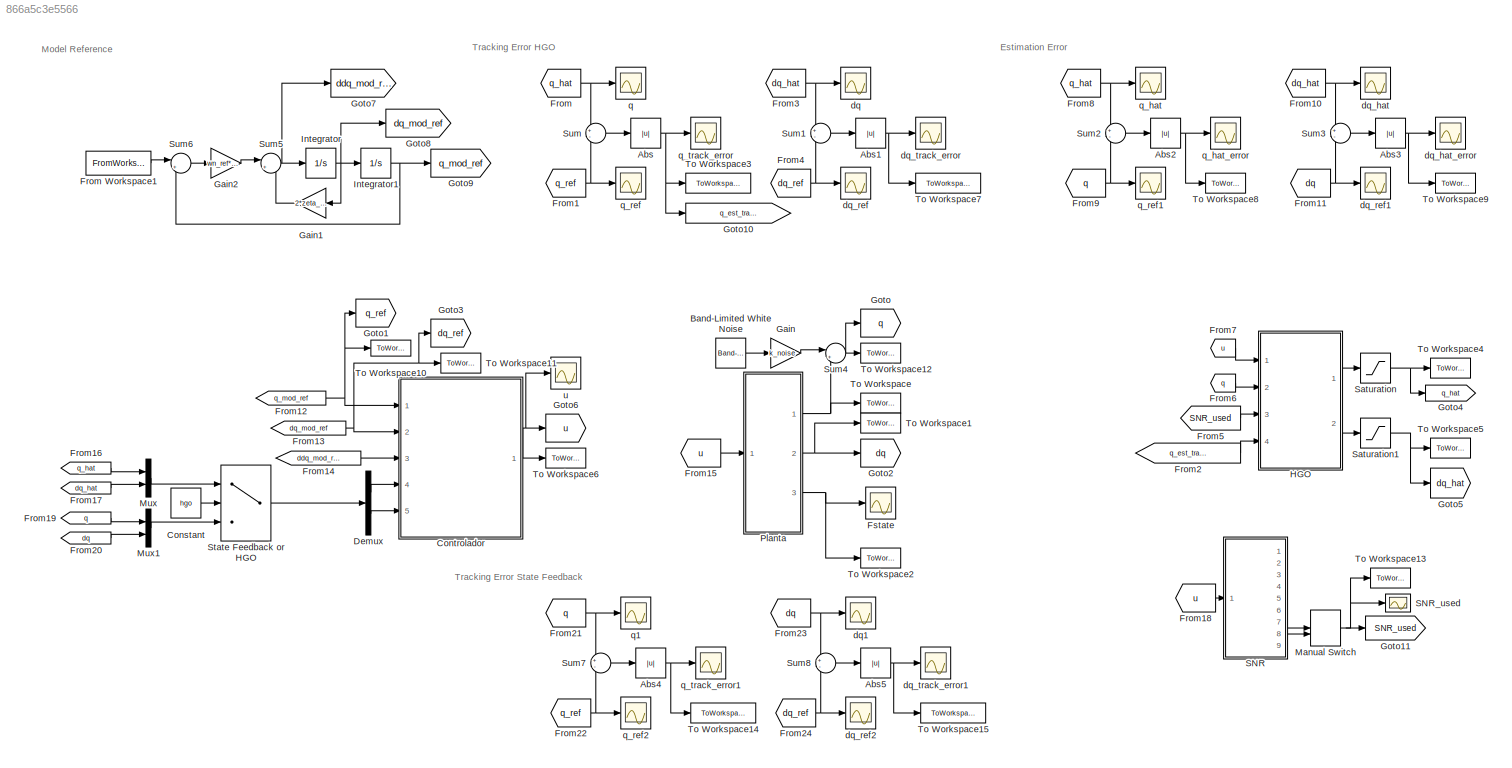
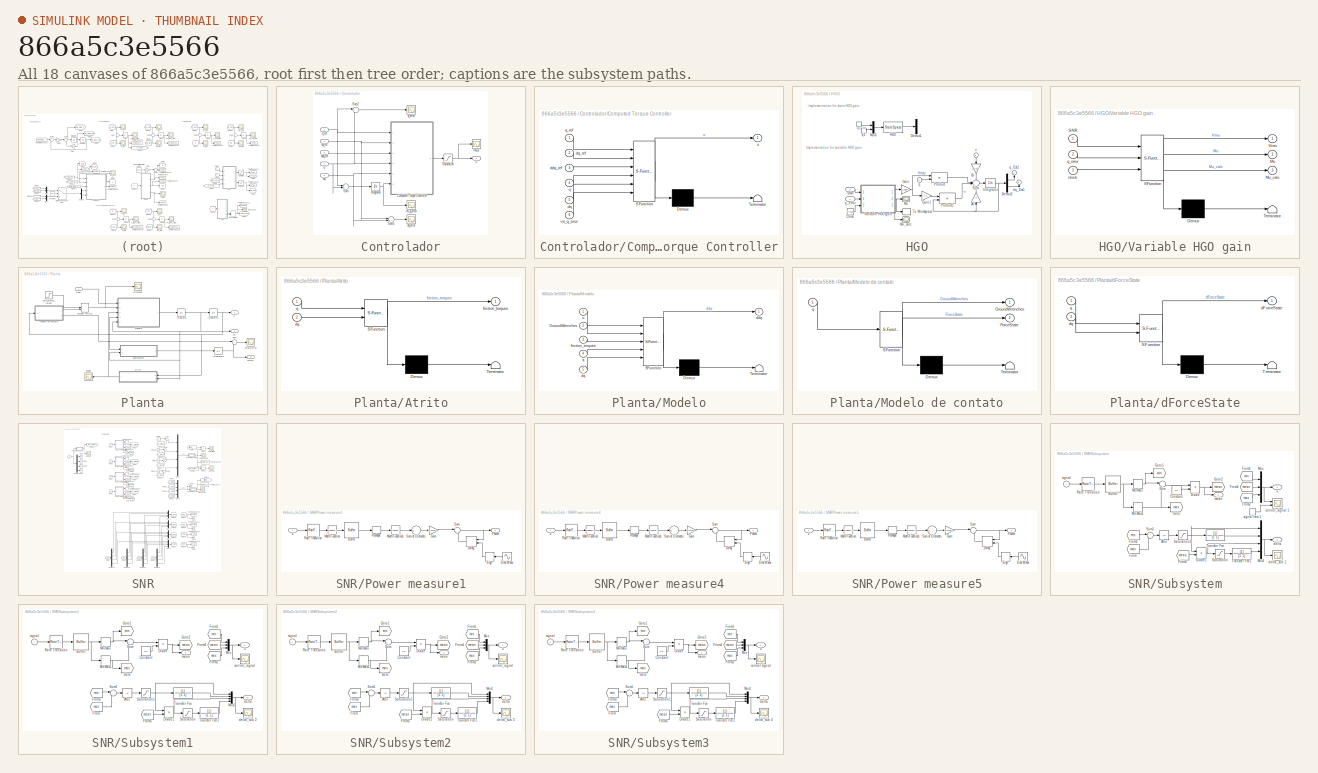
[diagram: thumbnail index - all 18 canvases of the model, root first then tree order]
MODEL slx_866a5c3e5566
KIND model
CONFIG AbsTol = auto
CONFIG EnableMultiTasking = on
CONFIG FixedStep = simulation_step
CONFIG MaxStep = 1e-2
CONFIG MinStep = auto
CONFIG RelTol = 1e-3
CONFIG SampleTimeConstraint = Unconstrained
CONFIG Solver = FixedStepAuto
CONFIG SolverName = FixedStepAuto
CONFIG StartTime = 0.0
CONFIG StopTime = 4
BLOCK [Abs] Abs
  Commented = on
  SaturateOnIntegerOverflow = off
BLOCK [Abs] Abs1
  Commented = on
  SaturateOnIntegerOverflow = off
BLOCK [Abs] Abs2
  Commented = on
  SaturateOnIntegerOverflow = off
BLOCK [Abs] Abs3
  Commented = on
  SaturateOnIntegerOverflow = off
BLOCK [Abs] Abs4
  SaturateOnIntegerOverflow = off
BLOCK [Abs] Abs5
  SaturateOnIntegerOverflow = off
BLOCK [Reference] Band-Limited White Noise  REF=simulink/Sources/Band-Limited
White Noise
  Ports = [0, 1]
  SourceBlock = simulink/Sources/Band-Limited\nWhite Noise
  SourceProductBaseCode = SL
  SourceProductName = Simulink
  SourceType = Band-Limited White Noise.
BLOCK [Constant] Constant
  Value = hgo
BLOCK [SubSystem] Controlador
  Ports = [5, 1]
  RequestExecContextInheritance = off
  Variant = off
BLOCK [SubSystem] Controlador/Computed Torque Controller
  ErrorFcn = Stateflow.Translate.translate
  PermitHierarchicalResolution = ExplicitOnly
  Ports = [6, 1]
  RequestExecContextInheritance = off
  SFBlockType = MATLAB Function
  TreatAsAtomicUnit = on
  Variant = off
BLOCK [Demux] Controlador/Computed Torque Controller/ Demux 
  Outputs = 1
  Ports = [1, 1]
BLOCK [S-Function] Controlador/Computed Torque Controller/ SFunction 
  EnableBusSupport = on
  FunctionName = sf_sfun
  Parameters = G_ctrl,Inertia_ctrl,Kd,Ki,Kp,L_ctrl,Mass_ctrl,R_ctrl,h_ctrl,joint_type
  PortCounts = [6 2]
  Ports = [6, 2]
  SFcnIsStateOwnerBlock = off
  SFunctionDeploymentMode = off
  Tag = Stateflow S-Function prosthesis_sim 1
BLOCK [Terminator] Controlador/Computed Torque Controller/ Terminator 
BLOCK [Inport] Controlador/Computed Torque Controller/ddq_ref
  IconDisplay = Port number
  Port = 3
BLOCK [Inport] Controlador/Computed Torque Controller/dq
  IconDisplay = Port number
  Port = 5
BLOCK [Inport] Controlador/Computed Torque Controller/dq_ref
  IconDisplay = Port number
  Port = 2
BLOCK [Inport] Controlador/Computed Torque Controller/int_q_error
  IconDisplay = Port number
  Port = 6
BLOCK [Inport] Controlador/Computed Torque Controller/q
  IconDisplay = Port number
  Port = 4
BLOCK [Inport] Controlador/Computed Torque Controller/q_ref
  IconDisplay = Port number
BLOCK [Outport] Controlador/Computed Torque Controller/u
  IconDisplay = Port number
BLOCK [Integrator] Controlador/Integrator
  InitialCondition = zeros(4,1)
  Ports = [1, 1]
BLOCK [Saturate] Controlador/Saturation
  InputPortMap = u0
  LowerLimit = -1400
  Ports = [1, 1]
  UpperLimit = 1400
BLOCK [Sum] Controlador/Sum
  IconShape = round
  InputSameDT = off
  Inputs = |+-
  OutDataTypeStr = Inherit: Inherit via internal rule
  Ports = [2, 1]
  SaturateOnIntegerOverflow = off
BLOCK [Sum] Controlador/Sum1
  IconShape = round
  InputSameDT = off
  Inputs = |+-
  OutDataTypeStr = Inherit: Inherit via internal rule
  Ports = [2, 1]
  SaturateOnIntegerOverflow = off
BLOCK [Sum] Controlador/Sum2
  IconShape = round
  InputSameDT = off
  Inputs = |+-
  OutDataTypeStr = Inherit: Inherit via internal rule
  Ports = [2, 1]
  SaturateOnIntegerOverflow = off
BLOCK [Inport] Controlador/ddq_ref
  IconDisplay = Port number
  Port = 3
BLOCK [Inport] Controlador/dq
  IconDisplay = Port number
  Port = 5
BLOCK [Scope] Controlador/dq_error
  NumInputPorts = 1
  Ports = [1]
  ScopeSpecificationString = C++SS(StrPVP('Location','[1, 49, 1921, 1039]'),StrPVP('Open','off'),MxPVP('AxesTitles',53,'struct(''axes1'',''%<SignalLabel>'')'),MxPVP('ScopeGraphics',56,'struct(''FigureColor'',''[0.5 0.5 0.5]'',''AxesColor'',''[0 0 0]'',''AxesTickColor'',''[1 1 1]'',''LineColors'',''[1 1 0;1 0 1;0 1 1;1 0 0;0 1 0;0 0 1]'',''LineStyles'',''-|-|-|-|-|-'',''LineWidths'',''[0.5 0.5 0.5 0.5 0.5 0.5]'',''MarkerStyles...<+195ch>
BLOCK [Inport] Controlador/dq_ref
  IconDisplay = Port number
  Port = 2
BLOCK [Scope] Controlador/int_q_error
  NumInputPorts = 1
  Ports = [1]
  ScopeSpecificationString = Simulink.scopes.TimeScopeBlockCfg('CurrentConfiguration', extmgr.ConfigurationSet(extmgr.Configuration('Core','General UI',true),extmgr.Configuration('Core','Source UI',true),extmgr.Configuration('Sources','WiredSimulink',true,'DataLoggingVariableName','ScopeData2','DataLoggingLimitDataPoints',true,'DataLoggingSaveFormat','Array','DataLoggingDecimation','1','DataLoggingDecimateData',true),extmgr.C...<+1741ch>
BLOCK [Inport] Controlador/q
  IconDisplay = Port number
  Port = 4
BLOCK [Scope] Controlador/q_error
  NumInputPorts = 1
  Ports = [1]
  ScopeSpecificationString = Simulink.scopes.TimeScopeBlockCfg('CurrentConfiguration', extmgr.ConfigurationSet(extmgr.Configuration('Core','General UI',true),extmgr.Configuration('Core','Source UI',true),extmgr.Configuration('Sources','WiredSimulink',true,'DataLoggingVariableName','ScopeData2','DataLoggingLimitDataPoints',true,'DataLoggingSaveFormat','Array','DataLoggingDecimation','1','DataLoggingDecimateData',true),extmgr.C...<+1782ch>
BLOCK [Inport] Controlador/q_ref
  IconDisplay = Port number
BLOCK [Scope] Controlador/tau_q
  NumInputPorts = 1
  Ports = [1]
  ScopeSpecificationString = Simulink.scopes.TimeScopeBlockCfg('CurrentConfiguration', extmgr.ConfigurationSet(extmgr.Configuration('Core','General UI',true),extmgr.Configuration('Core','Source UI',true),extmgr.Configuration('Sources','WiredSimulink',true,'DataLoggingSaveFormat','Array','DataLoggingDecimation','1','DataLoggingDecimateData',true,'DataLoggingVariableName','ScopeData1'),extmgr.Configuration('Visuals','Time Domai...<+1773ch>
BLOCK [Outport] Controlador/u
  IconDisplay = Port number
BLOCK [Demux] Demux
  DisplayOption = bar
  Outputs = 2
  Ports = [1, 2]
BLOCK [From] From
  Commented = on
  GotoTag = q_hat
BLOCK [FromWorkspace] From Workspace1
  SampleTime = 0
  VariableName = data_steps
  ZeroCross = on
BLOCK [From] From1
  Commented = on
  GotoTag = q_ref
BLOCK [From] From10
  Commented = on
  GotoTag = dq_hat
BLOCK [From] From11
  Commented = on
  GotoTag = dq
BLOCK [From] From12
  GotoTag = q_mod_ref
BLOCK [From] From13
  GotoTag = dq_mod_ref
BLOCK [From] From14
  GotoTag = ddq_mod_ref
BLOCK [From] From15
  GotoTag = u
BLOCK [From] From16
  Commented = on
  GotoTag = q_hat
BLOCK [From] From17
  Commented = on
  GotoTag = dq_hat
BLOCK [From] From18
  Commented = on
  GotoTag = u
BLOCK [From] From19
  GotoTag = q
BLOCK [From] From2
  Commented = on
  GotoTag = q_est_track_error
BLOCK [From] From20
  GotoTag = dq
BLOCK [From] From21
  GotoTag = q
BLOCK [From] From22
  GotoTag = q_ref
BLOCK [From] From23
  GotoTag = dq
BLOCK [From] From24
  GotoTag = dq_ref
BLOCK [From] From3
  Commented = on
  GotoTag = dq_hat
BLOCK [From] From4
  Commented = on
  GotoTag = dq_ref
BLOCK [From] From5
  Commented = on
  GotoTag = SNR_used
BLOCK [From] From6
  Commented = on
  GotoTag = q
BLOCK [From] From7
  Commented = on
  GotoTag = u
BLOCK [From] From8
  Commented = on
  GotoTag = q_hat
BLOCK [From] From9
  Commented = on
  GotoTag = q
BLOCK [Scope] Fstate
  NumInputPorts = 1
  Ports = [1]
  ScopeSpecificationString = Simulink.scopes.TimeScopeBlockCfg('CurrentConfiguration', extmgr.ConfigurationSet(extmgr.Configuration('Core','General UI',true),extmgr.Configuration('Core','Source UI',true),extmgr.Configuration('Sources','WiredSimulink',true,'DataLoggingSaveFormat','Array','DataLoggingDecimation','1','DataLoggingDecimateData',true,'DataLoggingVariableName','ScopeData2'),extmgr.Configuration('Visuals','Time Domai...<+1728ch>
BLOCK [Gain] Gain
  Gain = k_noise
  OutDataTypeStr = Inherit: Inherit via internal rule
  ParamDataTypeStr = Inherit: Inherit via internal rule
  SaturateOnIntegerOverflow = off
BLOCK [Gain] Gain1
  Gain = 2*zeta_ref*wn_ref
  OutDataTypeStr = Inherit: Inherit via internal rule
  ParamDataTypeStr = Inherit: Inherit via internal rule
  SaturateOnIntegerOverflow = off
BLOCK [Gain] Gain2
  Gain = wn_ref*wn_ref
  OutDataTypeStr = Inherit: Inherit via internal rule
  ParamDataTypeStr = Inherit: Inherit via internal rule
  SaturateOnIntegerOverflow = off
BLOCK [Goto] Goto
  GotoTag = q
BLOCK [Goto] Goto1
  GotoTag = q_ref
BLOCK [Goto] Goto10
  Commented = on
  GotoTag = q_est_track_error
BLOCK [Goto] Goto11
  Commented = on
  GotoTag = SNR_used
BLOCK [Goto] Goto2
  GotoTag = dq
BLOCK [Goto] Goto3
  GotoTag = dq_ref
BLOCK [Goto] Goto4
  Commented = on
  GotoTag = q_hat
BLOCK [Goto] Goto5
  Commented = on
  GotoTag = dq_hat
BLOCK [Goto] Goto6
  GotoTag = u
BLOCK [Goto] Goto7
  GotoTag = ddq_mod_ref
BLOCK [Goto] Goto8
  GotoTag = dq_mod_ref
BLOCK [Goto] Goto9
  GotoTag = q_mod_ref
BLOCK [SubSystem] HGO
  Commented = on
  Ports = [4, 2]
  RequestExecContextInheritance = off
  Variant = off
BLOCK [Gain] HGO/Ar
  Gain = Ar
  Multiplication = Matrix(K*u)
  OutDataTypeStr = Inherit: Inherit via internal rule
  ParamDataTypeStr = Inherit: Inherit via internal rule
  SaturateOnIntegerOverflow = off
BLOCK [Gain] HGO/Br
  Gain = Br*kpn
  Multiplication = Matrix(K*u)
  OutDataTypeStr = Inherit: Inherit via internal rule
  ParamDataTypeStr = Inherit: Inherit via internal rule
  SaturateOnIntegerOverflow = off
BLOCK [Clock] HGO/Clock
BLOCK [Demux] HGO/Demux1
  DisplayOption = bar
  Outputs = 2
  Ports = [1, 2]
BLOCK [Demux] HGO/Demux2
  DisplayOption = bar
  Outputs = 2
  Ports = [1, 2]
BLOCK [Gain] HGO/Gain
  Gain = L_hgo
  Multiplication = Matrix(u*K)
  OutDataTypeStr = Inherit: Inherit via internal rule
  ParamDataTypeStr = Inherit: Inherit via internal rule
  SaturateOnIntegerOverflow = off
BLOCK [Gain] HGO/Gain1
  Gain = Cr
  Multiplication = Matrix(u*K)
  OutDataTypeStr = Inherit: Inherit via internal rule
  ParamDataTypeStr = Inherit: Inherit via internal rule
  SaturateOnIntegerOverflow = off
BLOCK [StateSpace] HGO/HGO
  A = [Ar-Hmu*L_hgo*Cr]
  B = [Br Hmu*L_hgo]
  C = eye(8)
  D = zeros(8)
  Ports = [1, 1]
  X0 = [q_hat_init; dq_hat_init]
BLOCK [Integrator] HGO/Integrator
  InitialCondition = [q_hat_init; dq_hat_init]
  Ports = [1, 1]
BLOCK [Scope] HGO/Mu
  NumInputPorts = 1
  Ports = [1]
  ScopeSpecificationString = Simulink.scopes.TimeScopeBlockCfg('CurrentConfiguration', extmgr.ConfigurationSet(extmgr.Configuration('Core','General UI',true),extmgr.Configuration('Core','Source UI',true),extmgr.Configuration('Sources','WiredSimulink',true,'DataLoggingVariableName','ScopeData1'),extmgr.Configuration('Visuals','Time Domain',true,'SerializedDisplays',{struct('MinYLimReal','0.00021','MaxYLimReal','0.00209','YLabe...<+1430ch>
BLOCK [Scope] HGO/Mu_calc
  NumInputPorts = 1
  Ports = [1]
  ScopeSpecificationString = Simulink.scopes.TimeScopeBlockCfg('CurrentConfiguration', extmgr.ConfigurationSet(extmgr.Configuration('Core','General UI',true),extmgr.Configuration('Core','Source UI',true),extmgr.Configuration('Sources','WiredSimulink',true,'DataLoggingVariableName','ScopeData1'),extmgr.Configuration('Visuals','Time Domain',true,'SerializedDisplays',{struct('MinYLimReal','-0.00023','MaxYLimReal','0.00214','YLab...<+1431ch>
BLOCK [Mux] HGO/Mux5
  DisplayOption = bar
  Inputs = 2
  Ports = [2, 1]
BLOCK [Product] HGO/Product
  InputSameDT = off
  Multiplication = Matrix(*)
  OutDataTypeStr = Inherit: Inherit via internal rule
  Ports = [2, 1]
  RndMeth = Floor
  SaturateOnIntegerOverflow = off
BLOCK [Product] HGO/Product1
  InputSameDT = off
  Multiplication = Matrix(*)
  OutDataTypeStr = Inherit: Inherit via internal rule
  Ports = [2, 1]
  RndMeth = Floor
  SaturateOnIntegerOverflow = off
BLOCK [Inport] HGO/SNR
  IconDisplay = Port number
  Port = 3
BLOCK [Sum] HGO/Sum
  IconShape = round
  InputSameDT = off
  Inputs = ++-+
  OutDataTypeStr = Inherit: Inherit via internal rule
  Ports = [4, 1]
  SaturateOnIntegerOverflow = off
BLOCK [ToWorkspace] HGO/To Workspace
  FixptAsFi = on
  MaxDataPoints = inf
  Ports = [1]
  SampleTime = -1
  Save2DSignal = 3-D array (concatenate along third dimension)
  SaveFormat = Timeseries
  VariableName = Mu
BLOCK [SubSystem] HGO/Variable HGO gain
  ErrorFcn = Stateflow.Translate.translate
  PermitHierarchicalResolution = ExplicitOnly
  Ports = [3, 3]
  RequestExecContextInheritance = off
  SFBlockType = MATLAB Function
  TreatAsAtomicUnit = on
  Variant = off
BLOCK [Demux] HGO/Variable HGO gain/ Demux 
  Outputs = 1
  Ports = [1, 1]
BLOCK [S-Function] HGO/Variable HGO gain/ SFunction 
  EnableBusSupport = on
  FunctionName = sf_sfun
  PortCounts = [3 4]
  Ports = [3, 4]
  SFcnIsStateOwnerBlock = off
  SFunctionDeploymentMode = off
  Tag = Stateflow S-Function prosthesis_sim 5
BLOCK [Terminator] HGO/Variable HGO gain/ Terminator 
BLOCK [Outport] HGO/Variable HGO gain/Hmu
  IconDisplay = Port number
BLOCK [Outport] HGO/Variable HGO gain/Mu
  IconDisplay = Port number
  Port = 2
BLOCK [Outport] HGO/Variable HGO gain/Mu_calc
  IconDisplay = Port number
  Port = 3
BLOCK [Inport] HGO/Variable HGO gain/SNR
  IconDisplay = Port number
BLOCK [Inport] HGO/Variable HGO gain/clock
  IconDisplay = Port number
  Port = 3
BLOCK [Inport] HGO/Variable HGO gain/q_error
  IconDisplay = Port number
  Port = 2
BLOCK [Outport] HGO/dq_Est1
  IconDisplay = Port number
  Port = 2
  PortDimensions = 4
BLOCK [Inport] HGO/q
  IconDisplay = Port number
  Port = 2
BLOCK [InportShadow] HGO/q1
  IconDisplay = Port number
  Port = 2
BLOCK [Outport] HGO/q_Est1
  IconDisplay = Port number
  PortDimensions = 4
BLOCK [Inport] HGO/q_error
  IconDisplay = Port number
  Port = 4
BLOCK [Inport] HGO/u
  IconDisplay = Port number
BLOCK [InportShadow] HGO/u1
  IconDisplay = Port number
BLOCK [Integrator] Integrator
  InitialCondition = dqInit_model
  Ports = [1, 1]
BLOCK [Integrator] Integrator1
  InitialCondition = qInit_model
  Ports = [1, 1]
BLOCK [ManualSwitch] Manual Switch
  Commented = on
BLOCK [Mux] Mux
  Commented = on
  DisplayOption = bar
  Inputs = 2
  Ports = [2, 1]
BLOCK [Mux] Mux1
  DisplayOption = bar
  Inputs = 2
  Ports = [2, 1]
BLOCK [SubSystem] Planta
  Ports = [1, 3]
  RequestExecContextInheritance = off
  Variant = off
BLOCK [SubSystem] Planta/Atrito
  ErrorFcn = Stateflow.Translate.translate
  PermitHierarchicalResolution = ExplicitOnly
  Ports = [2, 1]
  RequestExecContextInheritance = off
  SFBlockType = MATLAB Function
  TreatAsAtomicUnit = on
  Variant = off
BLOCK [Demux] Planta/Atrito/ Demux 
  Outputs = 1
  Ports = [1, 1]
BLOCK [S-Function] Planta/Atrito/ SFunction 
  EnableBusSupport = on
  FunctionName = sf_sfun
  PortCounts = [2 2]
  Ports = [2, 2]
  SFcnIsStateOwnerBlock = off
  SFunctionDeploymentMode = off
  Tag = Stateflow S-Function prosthesis_sim 4
BLOCK [Terminator] Planta/Atrito/ Terminator 
BLOCK [Inport] Planta/Atrito/dq
  IconDisplay = Port number
  Port = 2
BLOCK [Outport] Planta/Atrito/friction_torques
  IconDisplay = Port number
BLOCK [Inport] Planta/Atrito/q
  IconDisplay = Port number
BLOCK [Outport] Planta/Fstate
  IconDisplay = Port number
  Port = 3
BLOCK [Scope] Planta/Fstate_error
  NumInputPorts = 1
  Ports = [1]
  ScopeSpecificationString = Simulink.scopes.TimeScopeBlockCfg('CurrentConfiguration', extmgr.ConfigurationSet(extmgr.Configuration('Core','General UI',true),extmgr.Configuration('Core','Source UI',true),extmgr.Configuration('Sources','WiredSimulink',true,'DataLoggingLimitDataPoints',true,'DataLoggingSaveFormat','Array','DataLoggingDecimation','1','DataLoggingDecimateData',true,'DataLoggingVariableName','ScopeData3'),extmgr.C...<+1710ch>
BLOCK [Integrator] Planta/Integrator
  InitialCondition = dqInit
  Ports = [1, 1]
BLOCK [Integrator] Planta/Integrator1
  InitialCondition = qInit
  Ports = [1, 1]
BLOCK [Integrator] Planta/Integrator2
  InitialCondition = Fstate0
  Ports = [1, 1]
BLOCK [ManualSwitch] Planta/Manual Switch
BLOCK [SubSystem] Planta/Modelo
  ErrorFcn = Stateflow.Translate.translate
  PermitHierarchicalResolution = ExplicitOnly
  Ports = [5, 1]
  RequestExecContextInheritance = off
  SFBlockType = MATLAB Function
  TreatAsAtomicUnit = on
  Variant = off
BLOCK [SubSystem] Planta/Modelo de contato
  ErrorFcn = Stateflow.Translate.translate
  PermitHierarchicalResolution = ExplicitOnly
  Ports = [1, 2]
  RequestExecContextInheritance = off
  SFBlockType = MATLAB Function
  TreatAsAtomicUnit = on
  Variant = off
BLOCK [Demux] Planta/Modelo de contato/ Demux 
  Outputs = 1
  Ports = [1, 1]
BLOCK [S-Function] Planta/Modelo de contato/ SFunction 
  EnableBusSupport = on
  FunctionName = sf_sfun
  Parameters = BodyContactPositions,L,beta,h,joint_type,k_b,s_z
  PortCounts = [1 3]
  Ports = [1, 3]
  SFcnIsStateOwnerBlock = off
  SFunctionDeploymentMode = off
  Tag = Stateflow S-Function prosthesis_sim 6
BLOCK [Terminator] Planta/Modelo de contato/ Terminator 
BLOCK [Outport] Planta/Modelo de contato/ForceState
  IconDisplay = Port number
  Port = 2
BLOCK [Outport] Planta/Modelo de contato/GroundWrenches
  IconDisplay = Port number
BLOCK [Inport] Planta/Modelo de contato/q
  IconDisplay = Port number
BLOCK [Demux] Planta/Modelo/ Demux 
  Outputs = 1
  Ports = [1, 1]
BLOCK [S-Function] Planta/Modelo/ SFunction 
  EnableBusSupport = on
  FunctionName = sf_sfun
  Parameters = BodyContact,BodyContactPositions,G,Inertia,L,Mass,R,h,joint_type
  PortCounts = [5 2]
  Ports = [5, 2]
  SFcnIsStateOwnerBlock = off
  SFunctionDeploymentMode = off
  Tag = Stateflow S-Function prosthesis_sim 2
BLOCK [Terminator] Planta/Modelo/ Terminator 
BLOCK [Inport] Planta/Modelo/GroundWrenches
  IconDisplay = Port number
  Port = 2
BLOCK [Outport] Planta/Modelo/ddq
  IconDisplay = Port number
BLOCK [Inport] Planta/Modelo/dq
  IconDisplay = Port number
  Port = 5
BLOCK [Inport] Planta/Modelo/friction_torques
  IconDisplay = Port number
  Port = 3
BLOCK [Inport] Planta/Modelo/q
  IconDisplay = Port number
  Port = 4
BLOCK [Inport] Planta/Modelo/u
  IconDisplay = Port number
BLOCK [Scope] Planta/Scope
  NumInputPorts = 1
  Ports = [1]
  ScopeSpecificationString = Simulink.scopes.TimeScopeBlockCfg('CurrentConfiguration', extmgr.ConfigurationSet(extmgr.Configuration('Core','General UI',true),extmgr.Configuration('Core','Source UI',true),extmgr.Configuration('Sources','WiredSimulink',true,'DataLoggingVariableName','ScopeData4'),extmgr.Configuration('Visuals','Time Domain',true),extmgr.Configuration('Tools','Plot Navigation',true),extmgr.Configuration('Tools',...<+40ch>
BLOCK [Sum] Planta/Sum
  IconShape = round
  InputSameDT = off
  Inputs = |+-
  OutDataTypeStr = Inherit: Inherit via internal rule
  Ports = [2, 1]
  SaturateOnIntegerOverflow = off
BLOCK [SubSystem] Planta/dForceState
  ErrorFcn = Stateflow.Translate.translate
  PermitHierarchicalResolution = ExplicitOnly
  Ports = [2, 1]
  RequestExecContextInheritance = off
  SFBlockType = MATLAB Function
  TreatAsAtomicUnit = on
  Variant = off
BLOCK [Demux] Planta/dForceState/ Demux 
  Outputs = 1
  Ports = [1, 1]
BLOCK [S-Function] Planta/dForceState/ SFunction 
  EnableBusSupport = on
  FunctionName = sf_sfun
  Parameters = BodyContactPositions,L,beta,h,joint_type,k_b,s_z
  PortCounts = [2 2]
  Ports = [2, 2]
  SFcnIsStateOwnerBlock = off
  SFunctionDeploymentMode = off
  Tag = Stateflow S-Function prosthesis_sim 7
BLOCK [Terminator] Planta/dForceState/ Terminator 
BLOCK [Outport] Planta/dForceState/dForceState
  IconDisplay = Port number
BLOCK [Inport] Planta/dForceState/dq
  IconDisplay = Port number
  Port = 2
BLOCK [Inport] Planta/dForceState/q
  IconDisplay = Port number
BLOCK [Outport] Planta/dq
  IconDisplay = Port number
  Port = 2
BLOCK [Outport] Planta/q
  IconDisplay = Port number
BLOCK [Inport] Planta/tauq
  IconDisplay = Port number
BLOCK [Scope] Planta/wrenches
  NumInputPorts = 1
  Ports = [1]
  ScopeSpecificationString = Simulink.scopes.TimeScopeBlockCfg('CurrentConfiguration', extmgr.ConfigurationSet(extmgr.Configuration('Core','General UI',true),extmgr.Configuration('Core','Source UI',true),extmgr.Configuration('Sources','WiredSimulink',true,'DataLoggingSaveFormat','Array','DataLoggingDecimation','1','DataLoggingDecimateData',true,'DataLoggingVariableName','ScopeData1'),extmgr.Configuration('Visuals','Time Domai...<+1905ch>
BLOCK [Step] Planta/zero_ground_forces
  After = zeros(6,2)
  Before = zeros(6,2)
  SampleTime = 0
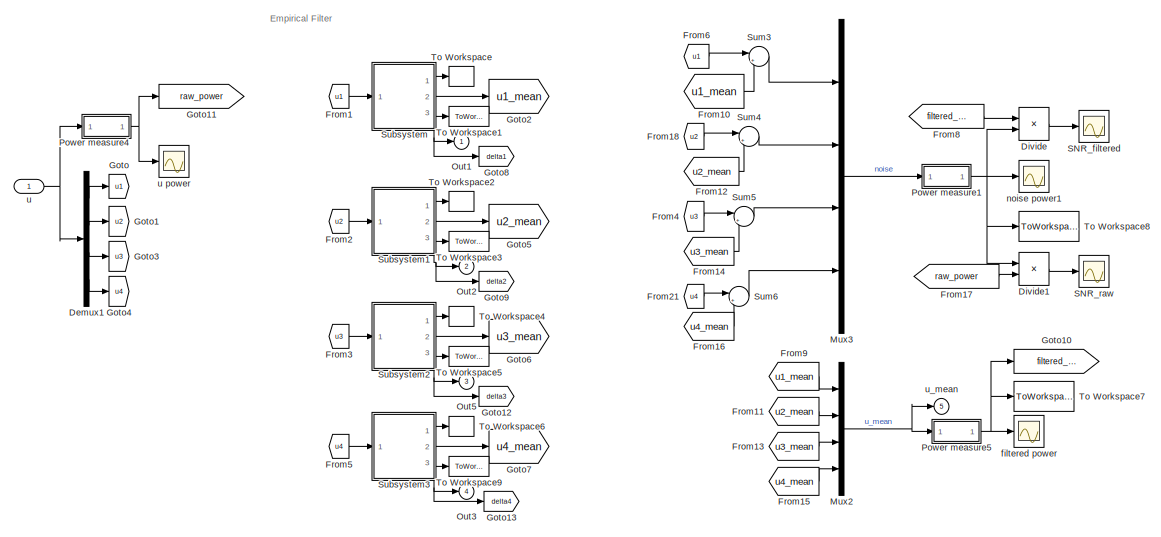
[diagram: SNR - part 1/2, full width, top band]
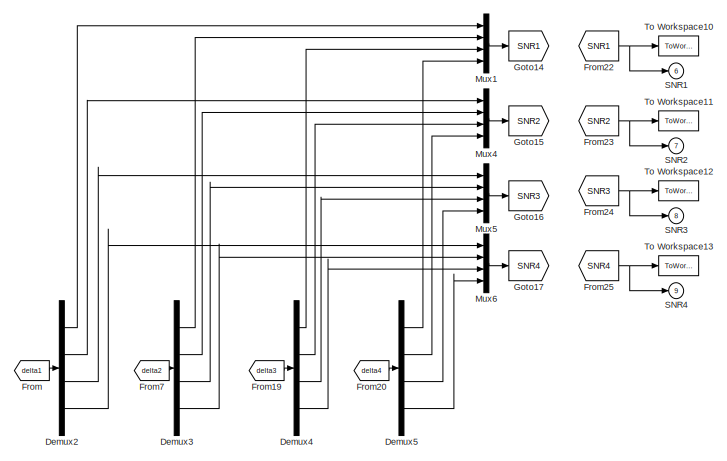
[diagram: SNR - part 2/2, bottom center region]
BLOCK [SubSystem] SNR
  Commented = on
  Ports = [1, 9]
  RequestExecContextInheritance = off
  Variant = off
BLOCK [Demux] SNR/Demux1
  DisplayOption = bar
  Ports = [1, 4]
BLOCK [Demux] SNR/Demux2
  DisplayOption = bar
  Ports = [1, 4]
BLOCK [Demux] SNR/Demux3
  DisplayOption = bar
  Ports = [1, 4]
BLOCK [Demux] SNR/Demux4
  DisplayOption = bar
  Ports = [1, 4]
BLOCK [Demux] SNR/Demux5
  DisplayOption = bar
  Ports = [1, 4]
BLOCK [Product] SNR/Divide
  InputSameDT = off
  Inputs = */
  OutDataTypeStr = Inherit: Inherit via internal rule
  Ports = [2, 1]
  RndMeth = Floor
  SaturateOnIntegerOverflow = off
BLOCK [Product] SNR/Divide1
  InputSameDT = off
  Inputs = /*
  OutDataTypeStr = Inherit: Inherit via internal rule
  Ports = [2, 1]
  RndMeth = Floor
  SaturateOnIntegerOverflow = off
BLOCK [From] SNR/From
  GotoTag = delta1
BLOCK [From] SNR/From1
  GotoTag = u1
BLOCK [From] SNR/From10
  GotoTag = u1_mean
BLOCK [From] SNR/From11
  GotoTag = u2_mean
BLOCK [From] SNR/From12
  GotoTag = u2_mean
BLOCK [From] SNR/From13
  GotoTag = u3_mean
BLOCK [From] SNR/From14
  GotoTag = u3_mean
BLOCK [From] SNR/From15
  GotoTag = u4_mean
BLOCK [From] SNR/From16
  GotoTag = u4_mean
BLOCK [From] SNR/From17
  GotoTag = raw_power
BLOCK [From] SNR/From18
  GotoTag = u2
BLOCK [From] SNR/From19
  GotoTag = delta3
BLOCK [From] SNR/From2
  GotoTag = u2
BLOCK [From] SNR/From20
  GotoTag = delta4
BLOCK [From] SNR/From21
  GotoTag = u4
BLOCK [From] SNR/From22
  GotoTag = SNR1
BLOCK [From] SNR/From23
  GotoTag = SNR2
BLOCK [From] SNR/From24
  GotoTag = SNR3
BLOCK [From] SNR/From25
  GotoTag = SNR4
BLOCK [From] SNR/From3
  GotoTag = u3
BLOCK [From] SNR/From4
  GotoTag = u3
BLOCK [From] SNR/From5
  GotoTag = u4
BLOCK [From] SNR/From6
  GotoTag = u1
BLOCK [From] SNR/From7
  GotoTag = delta2
BLOCK [From] SNR/From8
  GotoTag = filtered_power
BLOCK [From] SNR/From9
  GotoTag = u1_mean
BLOCK [Goto] SNR/Goto
  GotoTag = u1
BLOCK [Goto] SNR/Goto1
  GotoTag = u2
BLOCK [Goto] SNR/Goto10
  GotoTag = filtered_power
BLOCK [Goto] SNR/Goto11
  GotoTag = raw_power
BLOCK [Goto] SNR/Goto12
  GotoTag = delta3
BLOCK [Goto] SNR/Goto13
  GotoTag = delta4
BLOCK [Goto] SNR/Goto14
  GotoTag = SNR1
BLOCK [Goto] SNR/Goto15
  GotoTag = SNR2
BLOCK [Goto] SNR/Goto16
  GotoTag = SNR3
BLOCK [Goto] SNR/Goto17
  GotoTag = SNR4
BLOCK [Goto] SNR/Goto2
  GotoTag = u1_mean
BLOCK [Goto] SNR/Goto3
  GotoTag = u3
BLOCK [Goto] SNR/Goto4
  GotoTag = u4
BLOCK [Goto] SNR/Goto5
  GotoTag = u2_mean
BLOCK [Goto] SNR/Goto6
  GotoTag = u3_mean
BLOCK [Goto] SNR/Goto7
  GotoTag = u4_mean
BLOCK [Goto] SNR/Goto8
  GotoTag = delta1
BLOCK [Goto] SNR/Goto9
  GotoTag = delta2
BLOCK [Mux] SNR/Mux1
  DisplayOption = bar
  Ports = [4, 1]
BLOCK [Mux] SNR/Mux2
  DisplayOption = bar
  Ports = [4, 1]
BLOCK [Mux] SNR/Mux3
  DisplayOption = bar
  Ports = [4, 1]
BLOCK [Mux] SNR/Mux4
  DisplayOption = bar
  Ports = [4, 1]
BLOCK [Mux] SNR/Mux5
  DisplayOption = bar
  Ports = [4, 1]
BLOCK [Mux] SNR/Mux6
  DisplayOption = bar
  Ports = [4, 1]
BLOCK [Outport] SNR/Out1
  IconDisplay = Port number
BLOCK [Outport] SNR/Out2
  IconDisplay = Port number
  Port = 2
BLOCK [Outport] SNR/Out3
  IconDisplay = Port number
  Port = 4
BLOCK [Outport] SNR/Out5
  IconDisplay = Port number
  Port = 3
BLOCK [SubSystem] SNR/Power measure1
  Ports = [1, 1]
  RequestExecContextInheritance = off
  Variant = off
BLOCK [Buffer] SNR/Power measure1/Buffer
  N = 4* window/sampling
  OutputFrames = off
BLOCK [Delay] SNR/Power measure1/Delay
  DelayLength = 1
  ExternalReset = Either
  InputPortMap = u0,r5
  Ports = [2, 1]
BLOCK [Gain] SNR/Power measure1/Gain
  Gain = 1/(step_period/sampling)
  OutDataTypeStr = Inherit: Inherit via internal rule
  ParamDataTypeStr = Inherit: Inherit via internal rule
  SaturateOnIntegerOverflow = off
BLOCK [Math] SNR/Power measure1/Math Function
  Operator = magnitude^2
  Ports = [1, 1]
BLOCK [Math] SNR/Power measure1/Math Function1
  Operator = transpose
  Ports = [1, 1]
BLOCK [Outport] SNR/Power measure1/Power
  IconDisplay = Port number
BLOCK [RateTransition] SNR/Power measure1/Rate Transition
  OutPortSampleTime = sampling
BLOCK [Reshape] SNR/Power measure1/Reshape
  OutputDimensionality = Customize
  OutputDimensions = [4,window/sampling]
  Ports = [1, 1]
BLOCK [Signum] SNR/Power measure1/Sign
BLOCK [Sin] SNR/Power measure1/Sine Wave
  Frequency = 2*pi / (2 * step_period)
  Ports = [0, 1]
  SampleTime = window
BLOCK [Sum] SNR/Power measure1/Sum
  IconShape = round
  InputSameDT = off
  Inputs = |++
  OutDataTypeStr = Inherit: Inherit via internal rule
  Ports = [2, 1]
  SaturateOnIntegerOverflow = off
BLOCK [Sum] SNR/Power measure1/Sum of Elements
  CollapseMode = Specified dimension
  InputSameDT = off
  Inputs = +
  OutDataTypeStr = Inherit: Inherit via internal rule
  Ports = [1, 1]
  SaturateOnIntegerOverflow = off
BLOCK [Inport] SNR/Power measure1/u
  IconDisplay = Port number
BLOCK [SubSystem] SNR/Power measure4
  Ports = [1, 1]
  RequestExecContextInheritance = off
  Variant = off
BLOCK [Buffer] SNR/Power measure4/Buffer
  N = 4* window/sampling
  OutputFrames = off
BLOCK [Delay] SNR/Power measure4/Delay
  DelayLength = 1
  ExternalReset = Either
  InputPortMap = u0,r5
  Ports = [2, 1]
BLOCK [Gain] SNR/Power measure4/Gain
  Gain = 1/(step_period/sampling)
  OutDataTypeStr = Inherit: Inherit via internal rule
  ParamDataTypeStr = Inherit: Inherit via internal rule
  SaturateOnIntegerOverflow = off
BLOCK [Math] SNR/Power measure4/Math Function
  Operator = magnitude^2
  Ports = [1, 1]
BLOCK [Math] SNR/Power measure4/Math Function1
  Operator = transpose
  Ports = [1, 1]
BLOCK [Outport] SNR/Power measure4/Power
  IconDisplay = Port number
BLOCK [RateTransition] SNR/Power measure4/Rate Transition
  OutPortSampleTime = sampling
BLOCK [Reshape] SNR/Power measure4/Reshape
  OutputDimensionality = Customize
  OutputDimensions = [4,window/sampling]
  Ports = [1, 1]
BLOCK [Signum] SNR/Power measure4/Sign
BLOCK [Sin] SNR/Power measure4/Sine Wave
  Frequency = 2*pi / (2 * step_period)
  Ports = [0, 1]
  SampleTime = window
BLOCK [Sum] SNR/Power measure4/Sum
  IconShape = round
  InputSameDT = off
  Inputs = |++
  OutDataTypeStr = Inherit: Inherit via internal rule
  Ports = [2, 1]
  SaturateOnIntegerOverflow = off
BLOCK [Sum] SNR/Power measure4/Sum of Elements
  CollapseMode = Specified dimension
  InputSameDT = off
  Inputs = +
  OutDataTypeStr = Inherit: Inherit via internal rule
  Ports = [1, 1]
  SaturateOnIntegerOverflow = off
BLOCK [Inport] SNR/Power measure4/u
  IconDisplay = Port number
BLOCK [SubSystem] SNR/Power measure5
  Ports = [1, 1]
  RequestExecContextInheritance = off
  Variant = off
BLOCK [Buffer] SNR/Power measure5/Buffer
  N = 4* window/sampling
  OutputFrames = off
BLOCK [Delay] SNR/Power measure5/Delay
  DelayLength = 1
  ExternalReset = Either
  InputPortMap = u0,r5
  Ports = [2, 1]
BLOCK [Gain] SNR/Power measure5/Gain
  Gain = 1/(step_period/sampling)
  OutDataTypeStr = Inherit: Inherit via internal rule
  ParamDataTypeStr = Inherit: Inherit via internal rule
  SaturateOnIntegerOverflow = off
BLOCK [Math] SNR/Power measure5/Math Function
  Operator = magnitude^2
  Ports = [1, 1]
BLOCK [Math] SNR/Power measure5/Math Function1
  Operator = transpose
  Ports = [1, 1]
BLOCK [Outport] SNR/Power measure5/Power
  IconDisplay = Port number
BLOCK [RateTransition] SNR/Power measure5/Rate Transition
  OutPortSampleTime = sampling
BLOCK [Reshape] SNR/Power measure5/Reshape
  OutputDimensionality = Customize
  OutputDimensions = [4,window/sampling]
  Ports = [1, 1]
BLOCK [Signum] SNR/Power measure5/Sign
BLOCK [Sin] SNR/Power measure5/Sine Wave
  Frequency = 2*pi / (2 * step_period)
  Ports = [0, 1]
  SampleTime = window
BLOCK [Sum] SNR/Power measure5/Sum
  IconShape = round
  InputSameDT = off
  Inputs = |++
  OutDataTypeStr = Inherit: Inherit via internal rule
  Ports = [2, 1]
  SaturateOnIntegerOverflow = off
BLOCK [Sum] SNR/Power measure5/Sum of Elements
  CollapseMode = Specified dimension
  InputSameDT = off
  Inputs = +
  OutDataTypeStr = Inherit: Inherit via internal rule
  Ports = [1, 1]
  SaturateOnIntegerOverflow = off
BLOCK [Inport] SNR/Power measure5/u
  IconDisplay = Port number
BLOCK [Outport] SNR/SNR1
  IconDisplay = Port number
  Port = 6
BLOCK [Outport] SNR/SNR2
  IconDisplay = Port number
  Port = 7
BLOCK [Outport] SNR/SNR3
  IconDisplay = Port number
  Port = 8
BLOCK [Outport] SNR/SNR4
  IconDisplay = Port number
  Port = 9
BLOCK [Scope] SNR/SNR_filtered
  NumInputPorts = 1
  Ports = [1]
  ScopeSpecificationString = Simulink.scopes.TimeScopeBlockCfg('CurrentConfiguration', extmgr.ConfigurationSet(extmgr.Configuration('Core','General UI',true),extmgr.Configuration('Core','Source UI',true),extmgr.Configuration('Sources','WiredSimulink',true,'DataLoggingVariableName','ScopeData1'),extmgr.Configuration('Visuals','Time Domain',true,'SerializedDisplays',{struct('MinYLimReal','-1.19015','MaxYLimReal','10.71335','YLa...<+1470ch>
BLOCK [Scope] SNR/SNR_raw
  NumInputPorts = 1
  Ports = [1]
  ScopeSpecificationString = Simulink.scopes.TimeScopeBlockCfg('CurrentConfiguration', extmgr.ConfigurationSet(extmgr.Configuration('Core','General UI',true),extmgr.Configuration('Core','Source UI',true),extmgr.Configuration('Sources','WiredSimulink',true,'DataLoggingVariableName','ScopeData2'),extmgr.Configuration('Visuals','Time Domain',true,'SerializedDisplays',{struct('MinYLimReal','-1.92383','MaxYLimReal','22.73597','YLa...<+1519ch>
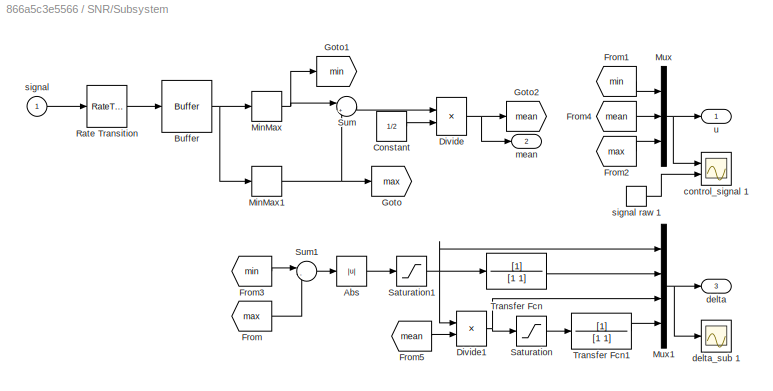
BLOCK [SubSystem] SNR/Subsystem
  Ports = [1, 3]
  RequestExecContextInheritance = off
  Variant = off
BLOCK [Abs] SNR/Subsystem/Abs
  SaturateOnIntegerOverflow = off
BLOCK [Buffer] SNR/Subsystem/Buffer
  N = N
  OutputFrames = off
  V = N - 1
BLOCK [Constant] SNR/Subsystem/Constant
  Value = 1/2
BLOCK [Product] SNR/Subsystem/Divide
  InputSameDT = off
  OutDataTypeStr = Inherit: Inherit via internal rule
  Ports = [2, 1]
BLOCK [Product] SNR/Subsystem/Divide1
  InputSameDT = off
  Inputs = */
  OutDataTypeStr = Inherit: Inherit via internal rule
  Ports = [2, 1]
BLOCK [From] SNR/Subsystem/From
  GotoTag = max
BLOCK [From] SNR/Subsystem/From1
  GotoTag = min
BLOCK [From] SNR/Subsystem/From2
  GotoTag = max
BLOCK [From] SNR/Subsystem/From3
  GotoTag = min
BLOCK [From] SNR/Subsystem/From4
  GotoTag = mean
BLOCK [From] SNR/Subsystem/From5
  GotoTag = mean
BLOCK [Goto] SNR/Subsystem/Goto
  GotoTag = max
BLOCK [Goto] SNR/Subsystem/Goto1
  GotoTag = min
BLOCK [Goto] SNR/Subsystem/Goto2
  GotoTag = mean
BLOCK [MinMax] SNR/Subsystem/MinMax
  InputSameDT = off
  Ports = [1, 1]
  SaturateOnIntegerOverflow = off
BLOCK [MinMax] SNR/Subsystem/MinMax1
  Function = max
  InputSameDT = off
  Ports = [1, 1]
  SaturateOnIntegerOverflow = off
BLOCK [Mux] SNR/Subsystem/Mux
  DisplayOption = bar
  Inputs = 3
  Ports = [3, 1]
BLOCK [Mux] SNR/Subsystem/Mux1
  DisplayOption = bar
  Ports = [4, 1]
BLOCK [RateTransition] SNR/Subsystem/Rate Transition
  OutPortSampleTime = simulation_step
BLOCK [Saturate] SNR/Subsystem/Saturation
  InputPortMap = u0
  LowerLimit = -800
  Ports = [1, 1]
  UpperLimit = 800
BLOCK [Saturate] SNR/Subsystem/Saturation1
  InputPortMap = u0
  LowerLimit = -400
  Ports = [1, 1]
  UpperLimit = 400
BLOCK [Sum] SNR/Subsystem/Sum
  IconShape = round
  InputSameDT = off
  Inputs = |++
  OutDataTypeStr = Inherit: Inherit via internal rule
  Ports = [2, 1]
  SaturateOnIntegerOverflow = off
BLOCK [Sum] SNR/Subsystem/Sum1
  IconShape = round
  InputSameDT = off
  Inputs = |-+
  OutDataTypeStr = Inherit: Inherit via internal rule
  Ports = [2, 1]
  SaturateOnIntegerOverflow = off
BLOCK [TransferFcn] SNR/Subsystem/Transfer Fcn
  Denominator = [1 1]
BLOCK [TransferFcn] SNR/Subsystem/Transfer Fcn1
  Denominator = [1 1]
BLOCK [Scope] SNR/Subsystem/control_signal 1
  NumInputPorts = 2
  Ports = [2]
  ScopeSpecificationString = Simulink.scopes.TimeScopeBlockCfg('CurrentConfiguration', extmgr.ConfigurationSet(extmgr.Configuration('Core','General UI',true),extmgr.Configuration('Core','Source UI',true),extmgr.Configuration('Sources','WiredSimulink',true,'DataLoggingVariableName','ScopeData3'),extmgr.Configuration('Visuals','Time Domain',true,'SerializedDisplays',{struct('MinYLimReal','-1000.00000','MaxYLimReal','1000.00000'...<+1450ch>
BLOCK [Outport] SNR/Subsystem/delta
  IconDisplay = Port number
  Port = 3
BLOCK [Scope] SNR/Subsystem/delta_sub 1
  NumInputPorts = 1
  Ports = [1]
  ScopeSpecificationString = Simulink.scopes.TimeScopeBlockCfg('CurrentConfiguration', extmgr.ConfigurationSet(extmgr.Configuration('Core','General UI',true),extmgr.Configuration('Core','Source UI',true),extmgr.Configuration('Sources','WiredSimulink',true,'DataLoggingVariableName','ScopeData4'),extmgr.Configuration('Visuals','Time Domain',true,'SerializedDisplays',{struct('MinYLimReal','-47.7792','MaxYLimReal','150.74628','YL...<+1466ch>
BLOCK [Outport] SNR/Subsystem/mean
  IconDisplay = Port number
  Port = 2
BLOCK [Inport] SNR/Subsystem/signal
  IconDisplay = Port number
BLOCK [InportShadow] SNR/Subsystem/signal raw 1
  IconDisplay = Port number
BLOCK [Outport] SNR/Subsystem/u
  IconDisplay = Port number
BLOCK [SubSystem] SNR/Subsystem1
  Ports = [1, 3]
  RequestExecContextInheritance = off
  Variant = off
BLOCK [Abs] SNR/Subsystem1/Abs
  SaturateOnIntegerOverflow = off
BLOCK [Buffer] SNR/Subsystem1/Buffer
  N = N
  OutputFrames = off
  V = N - 1
BLOCK [Constant] SNR/Subsystem1/Constant
  Value = 1/2
BLOCK [Product] SNR/Subsystem1/Divide
  InputSameDT = off
  OutDataTypeStr = Inherit: Inherit via internal rule
  Ports = [2, 1]
BLOCK [Product] SNR/Subsystem1/Divide1
  InputSameDT = off
  Inputs = */
  OutDataTypeStr = Inherit: Inherit via internal rule
  Ports = [2, 1]
BLOCK [From] SNR/Subsystem1/From
  GotoTag = max
BLOCK [From] SNR/Subsystem1/From1
  GotoTag = min
BLOCK [From] SNR/Subsystem1/From2
  GotoTag = max
BLOCK [From] SNR/Subsystem1/From3
  GotoTag = min
BLOCK [From] SNR/Subsystem1/From4
  GotoTag = mean
BLOCK [From] SNR/Subsystem1/From5
  GotoTag = mean
BLOCK [Goto] SNR/Subsystem1/Goto
  GotoTag = max
BLOCK [Goto] SNR/Subsystem1/Goto1
  GotoTag = min
BLOCK [Goto] SNR/Subsystem1/Goto2
  GotoTag = mean
BLOCK [MinMax] SNR/Subsystem1/MinMax
  InputSameDT = off
  Ports = [1, 1]
  SaturateOnIntegerOverflow = off
BLOCK [MinMax] SNR/Subsystem1/MinMax1
  Function = max
  InputSameDT = off
  Ports = [1, 1]
  SaturateOnIntegerOverflow = off
BLOCK [Mux] SNR/Subsystem1/Mux
  DisplayOption = bar
  Inputs = 3
  Ports = [3, 1]
BLOCK [Mux] SNR/Subsystem1/Mux1
  DisplayOption = bar
  Ports = [4, 1]
BLOCK [RateTransition] SNR/Subsystem1/Rate Transition
  OutPortSampleTime = simulation_step
BLOCK [Saturate] SNR/Subsystem1/Saturation
  InputPortMap = u0
  LowerLimit = -800
  Ports = [1, 1]
  UpperLimit = 800
BLOCK [Saturate] SNR/Subsystem1/Saturation1
  InputPortMap = u0
  LowerLimit = -400
  Ports = [1, 1]
  UpperLimit = 400
BLOCK [Sum] SNR/Subsystem1/Sum
  IconShape = round
  InputSameDT = off
  Inputs = |++
  OutDataTypeStr = Inherit: Inherit via internal rule
  Ports = [2, 1]
  SaturateOnIntegerOverflow = off
BLOCK [Sum] SNR/Subsystem1/Sum1
  IconShape = round
  InputSameDT = off
  Inputs = |-+
  OutDataTypeStr = Inherit: Inherit via internal rule
  Ports = [2, 1]
  SaturateOnIntegerOverflow = off
BLOCK [TransferFcn] SNR/Subsystem1/Transfer Fcn
  Denominator = [1 1]
BLOCK [TransferFcn] SNR/Subsystem1/Transfer Fcn1
  Denominator = [1 1]
BLOCK [Scope] SNR/Subsystem1/control_signal
  NumInputPorts = 1
  Ports = [1]
  ScopeSpecificationString = Simulink.scopes.TimeScopeBlockCfg('CurrentConfiguration', extmgr.ConfigurationSet(extmgr.Configuration('Core','General UI',true),extmgr.Configuration('Core','Source UI',true),extmgr.Configuration('Sources','WiredSimulink',true,'DataLoggingVariableName','ScopeData5'),extmgr.Configuration('Visuals','Time Domain',true),extmgr.Configuration('Tools','Plot Navigation',true),extmgr.Configuration('Tools',...<+40ch>
BLOCK [Outport] SNR/Subsystem1/delta
  IconDisplay = Port number
  Port = 3
BLOCK [Scope] SNR/Subsystem1/delta_sub 2
  NumInputPorts = 1
  Ports = [1]
  ScopeSpecificationString = Simulink.scopes.TimeScopeBlockCfg('CurrentConfiguration', extmgr.ConfigurationSet(extmgr.Configuration('Core','General UI',true),extmgr.Configuration('Core','Source UI',true),extmgr.Configuration('Sources','WiredSimulink',true,'DataLoggingVariableName','ScopeData6'),extmgr.Configuration('Visuals','Time Domain',true,'SerializedDisplays',{struct('MinYLimReal','-423.86554','MaxYLimReal','435.94662','...<+1517ch>
BLOCK [Outport] SNR/Subsystem1/mean
  IconDisplay = Port number
  Port = 2
BLOCK [Inport] SNR/Subsystem1/signal
  IconDisplay = Port number
BLOCK [Outport] SNR/Subsystem1/u
  IconDisplay = Port number
BLOCK [SubSystem] SNR/Subsystem2
  Ports = [1, 3]
  RequestExecContextInheritance = off
  Variant = off
BLOCK [Abs] SNR/Subsystem2/Abs
  SaturateOnIntegerOverflow = off
BLOCK [Buffer] SNR/Subsystem2/Buffer
  N = N
  OutputFrames = off
  V = N - 1
BLOCK [Constant] SNR/Subsystem2/Constant
  Value = 1/2
BLOCK [Product] SNR/Subsystem2/Divide
  InputSameDT = off
  OutDataTypeStr = Inherit: Inherit via internal rule
  Ports = [2, 1]
BLOCK [Product] SNR/Subsystem2/Divide1
  InputSameDT = off
  Inputs = */
  OutDataTypeStr = Inherit: Inherit via internal rule
  Ports = [2, 1]
BLOCK [From] SNR/Subsystem2/From
  GotoTag = max
BLOCK [From] SNR/Subsystem2/From1
  GotoTag = min
BLOCK [From] SNR/Subsystem2/From2
  GotoTag = max
BLOCK [From] SNR/Subsystem2/From3
  GotoTag = min
BLOCK [From] SNR/Subsystem2/From4
  GotoTag = mean
BLOCK [From] SNR/Subsystem2/From5
  GotoTag = mean
BLOCK [Goto] SNR/Subsystem2/Goto
  GotoTag = max
BLOCK [Goto] SNR/Subsystem2/Goto1
  GotoTag = min
BLOCK [Goto] SNR/Subsystem2/Goto2
  GotoTag = mean
BLOCK [MinMax] SNR/Subsystem2/MinMax
  InputSameDT = off
  Ports = [1, 1]
  SaturateOnIntegerOverflow = off
BLOCK [MinMax] SNR/Subsystem2/MinMax1
  Function = max
  InputSameDT = off
  Ports = [1, 1]
  SaturateOnIntegerOverflow = off
BLOCK [Mux] SNR/Subsystem2/Mux
  DisplayOption = bar
  Inputs = 3
  Ports = [3, 1]
BLOCK [Mux] SNR/Subsystem2/Mux1
  DisplayOption = bar
  Ports = [4, 1]
BLOCK [RateTransition] SNR/Subsystem2/Rate Transition
  OutPortSampleTime = simulation_step
BLOCK [Saturate] SNR/Subsystem2/Saturation
  InputPortMap = u0
  LowerLimit = -800
  Ports = [1, 1]
  UpperLimit = 800
BLOCK [Saturate] SNR/Subsystem2/Saturation1
  InputPortMap = u0
  LowerLimit = -400
  Ports = [1, 1]
  UpperLimit = 400
BLOCK [Sum] SNR/Subsystem2/Sum
  IconShape = round
  InputSameDT = off
  Inputs = |++
  OutDataTypeStr = Inherit: Inherit via internal rule
  Ports = [2, 1]
  SaturateOnIntegerOverflow = off
BLOCK [Sum] SNR/Subsystem2/Sum1
  IconShape = round
  InputSameDT = off
  Inputs = |-+
  OutDataTypeStr = Inherit: Inherit via internal rule
  Ports = [2, 1]
  SaturateOnIntegerOverflow = off
BLOCK [TransferFcn] SNR/Subsystem2/Transfer Fcn
  Denominator = [1 1]
BLOCK [TransferFcn] SNR/Subsystem2/Transfer Fcn1
  Denominator = [1 1]
BLOCK [Scope] SNR/Subsystem2/control_signal
  NumInputPorts = 1
  Ports = [1]
  ScopeSpecificationString = Simulink.scopes.TimeScopeBlockCfg('CurrentConfiguration', extmgr.ConfigurationSet(extmgr.Configuration('Core','General UI',true),extmgr.Configuration('Core','Source UI',true),extmgr.Configuration('Sources','WiredSimulink',true,'DataLoggingVariableName','ScopeData10'),extmgr.Configuration('Visuals','Time Domain',true),extmgr.Configuration('Tools','Plot Navigation',true),extmgr.Configuration('Tools'...<+41ch>
BLOCK [Outport] SNR/Subsystem2/delta
  IconDisplay = Port number
  Port = 3
BLOCK [Scope] SNR/Subsystem2/delta_sub 3
  NumInputPorts = 1
  Ports = [1]
  ScopeSpecificationString = Simulink.scopes.TimeScopeBlockCfg('CurrentConfiguration', extmgr.ConfigurationSet(extmgr.Configuration('Core','General UI',true),extmgr.Configuration('Core','Source UI',true),extmgr.Configuration('Sources','WiredSimulink',true,'DataLoggingVariableName','ScopeData11'),extmgr.Configuration('Visuals','Time Domain',true,'SerializedDisplays',{struct('MinYLimReal','-2535.60861','MaxYLimReal','2601.8363'...<+1477ch>
BLOCK [Outport] SNR/Subsystem2/mean
  IconDisplay = Port number
  Port = 2
BLOCK [Inport] SNR/Subsystem2/signal
  IconDisplay = Port number
BLOCK [Outport] SNR/Subsystem2/u
  IconDisplay = Port number
BLOCK [SubSystem] SNR/Subsystem3
  Ports = [1, 3]
  RequestExecContextInheritance = off
  Variant = off
BLOCK [Abs] SNR/Subsystem3/Abs
  SaturateOnIntegerOverflow = off
BLOCK [Buffer] SNR/Subsystem3/Buffer
  N = N
  OutputFrames = off
  V = N - 1
BLOCK [Constant] SNR/Subsystem3/Constant
  Value = 1/2
BLOCK [Product] SNR/Subsystem3/Divide
  InputSameDT = off
  OutDataTypeStr = Inherit: Inherit via internal rule
  Ports = [2, 1]
BLOCK [Product] SNR/Subsystem3/Divide1
  InputSameDT = off
  Inputs = */
  OutDataTypeStr = Inherit: Inherit via internal rule
  Ports = [2, 1]
BLOCK [From] SNR/Subsystem3/From
  GotoTag = max
BLOCK [From] SNR/Subsystem3/From1
  GotoTag = min
BLOCK [From] SNR/Subsystem3/From2
  GotoTag = max
BLOCK [From] SNR/Subsystem3/From3
  GotoTag = min
BLOCK [From] SNR/Subsystem3/From4
  GotoTag = mean
BLOCK [From] SNR/Subsystem3/From5
  GotoTag = mean
BLOCK [Goto] SNR/Subsystem3/Goto
  GotoTag = max
BLOCK [Goto] SNR/Subsystem3/Goto1
  GotoTag = min
BLOCK [Goto] SNR/Subsystem3/Goto2
  GotoTag = mean
BLOCK [MinMax] SNR/Subsystem3/MinMax
  InputSameDT = off
  Ports = [1, 1]
  SaturateOnIntegerOverflow = off
BLOCK [MinMax] SNR/Subsystem3/MinMax1
  Function = max
  InputSameDT = off
  Ports = [1, 1]
  SaturateOnIntegerOverflow = off
BLOCK [Mux] SNR/Subsystem3/Mux
  DisplayOption = bar
  Inputs = 3
  Ports = [3, 1]
BLOCK [Mux] SNR/Subsystem3/Mux1
  DisplayOption = bar
  Ports = [4, 1]
BLOCK [RateTransition] SNR/Subsystem3/Rate Transition
  OutPortSampleTime = simulation_step
BLOCK [Saturate] SNR/Subsystem3/Saturation
  InputPortMap = u0
  LowerLimit = -800
  Ports = [1, 1]
  UpperLimit = 800
BLOCK [Saturate] SNR/Subsystem3/Saturation1
  InputPortMap = u0
  LowerLimit = -400
  Ports = [1, 1]
  UpperLimit = 400
BLOCK [Sum] SNR/Subsystem3/Sum
  IconShape = round
  InputSameDT = off
  Inputs = |++
  OutDataTypeStr = Inherit: Inherit via internal rule
  Ports = [2, 1]
  SaturateOnIntegerOverflow = off
BLOCK [Sum] SNR/Subsystem3/Sum1
  IconShape = round
  InputSameDT = off
  Inputs = |-+
  OutDataTypeStr = Inherit: Inherit via internal rule
  Ports = [2, 1]
  SaturateOnIntegerOverflow = off
BLOCK [TransferFcn] SNR/Subsystem3/Transfer Fcn
  Denominator = [1 1]
BLOCK [TransferFcn] SNR/Subsystem3/Transfer Fcn1
  Denominator = [1 1]
BLOCK [Scope] SNR/Subsystem3/control signal
  NumInputPorts = 1
  Ports = [1]
  ScopeSpecificationString = Simulink.scopes.TimeScopeBlockCfg('CurrentConfiguration', extmgr.ConfigurationSet(extmgr.Configuration('Core','General UI',true),extmgr.Configuration('Core','Source UI',true),extmgr.Configuration('Sources','WiredSimulink',true,'DataLoggingVariableName','ScopeData12'),extmgr.Configuration('Visuals','Time Domain',true),extmgr.Configuration('Tools','Plot Navigation',true),extmgr.Configuration('Tools'...<+41ch>
BLOCK [Outport] SNR/Subsystem3/delta
  IconDisplay = Port number
  Port = 3
BLOCK [Scope] SNR/Subsystem3/delta_sub 4
  NumInputPorts = 1
  Ports = [1]
  ScopeSpecificationString = Simulink.scopes.TimeScopeBlockCfg('CurrentConfiguration', extmgr.ConfigurationSet(extmgr.Configuration('Core','General UI',true),extmgr.Configuration('Core','Source UI',true),extmgr.Configuration('Sources','WiredSimulink',true,'DataLoggingVariableName','ScopeData13'),extmgr.Configuration('Visuals','Time Domain',true,'SerializedDisplays',{struct('MinYLimReal','-27152.17636','MaxYLimReal','7615.3225...<+1483ch>
BLOCK [Outport] SNR/Subsystem3/mean
  IconDisplay = Port number
  Port = 2
BLOCK [Inport] SNR/Subsystem3/signal
  IconDisplay = Port number
BLOCK [Outport] SNR/Subsystem3/u
  IconDisplay = Port number
BLOCK [Sum] SNR/Sum3
  IconShape = round
  InputSameDT = off
  Inputs = |+-
  OutDataTypeStr = Inherit: Inherit via internal rule
  Ports = [2, 1]
  SaturateOnIntegerOverflow = off
BLOCK [Sum] SNR/Sum4
  IconShape = round
  InputSameDT = off
  Inputs = |+-
  OutDataTypeStr = Inherit: Inherit via internal rule
  Ports = [2, 1]
  SaturateOnIntegerOverflow = off
BLOCK [Sum] SNR/Sum5
  IconShape = round
  InputSameDT = off
  Inputs = |+-
  OutDataTypeStr = Inherit: Inherit via internal rule
  Ports = [2, 1]
  SaturateOnIntegerOverflow = off
BLOCK [Sum] SNR/Sum6
  IconShape = round
  InputSameDT = off
  Inputs = |+-
  OutDataTypeStr = Inherit: Inherit via internal rule
  Ports = [2, 1]
  SaturateOnIntegerOverflow = off
BLOCK [ToWorkspace] SNR/To Workspace
  FixptAsFi = on
  MaxDataPoints = inf
  Ports = [1]
  SampleTime = -1
  Save2DSignal = 3-D array (concatenate along third dimension)
  SaveFormat = Timeseries
  VariableName = u1
BLOCK [ToWorkspace] SNR/To Workspace1
  FixptAsFi = on
  MaxDataPoints = inf
  Ports = [1]
  SampleTime = -1
  Save2DSignal = 3-D array (concatenate along third dimension)
  SaveFormat = Timeseries
  VariableName = delta1
BLOCK [ToWorkspace] SNR/To Workspace10
  FixptAsFi = on
  MaxDataPoints = inf
  Ports = [1]
  SampleTime = -1
  Save2DSignal = 3-D array (concatenate along third dimension)
  SaveFormat = Timeseries
  VariableName = SNR1
BLOCK [ToWorkspace] SNR/To Workspace11
  FixptAsFi = on
  MaxDataPoints = inf
  Ports = [1]
  SampleTime = -1
  Save2DSignal = 3-D array (concatenate along third dimension)
  SaveFormat = Timeseries
  VariableName = SNR2
BLOCK [ToWorkspace] SNR/To Workspace12
  FixptAsFi = on
  MaxDataPoints = inf
  Ports = [1]
  SampleTime = -1
  Save2DSignal = 3-D array (concatenate along third dimension)
  SaveFormat = Timeseries
  VariableName = SNR3
BLOCK [ToWorkspace] SNR/To Workspace13
  FixptAsFi = on
  MaxDataPoints = inf
  Ports = [1]
  SampleTime = -1
  Save2DSignal = 3-D array (concatenate along third dimension)
  SaveFormat = Timeseries
  VariableName = SNR4
BLOCK [ToWorkspace] SNR/To Workspace2
  FixptAsFi = on
  MaxDataPoints = inf
  Ports = [1]
  SampleTime = -1
  Save2DSignal = 3-D array (concatenate along third dimension)
  SaveFormat = Timeseries
  VariableName = u2
BLOCK [ToWorkspace] SNR/To Workspace3
  FixptAsFi = on
  MaxDataPoints = inf
  Ports = [1]
  SampleTime = -1
  Save2DSignal = 3-D array (concatenate along third dimension)
  SaveFormat = Timeseries
  VariableName = delta2
BLOCK [ToWorkspace] SNR/To Workspace4
  FixptAsFi = on
  MaxDataPoints = inf
  Ports = [1]
  SampleTime = -1
  Save2DSignal = 3-D array (concatenate along third dimension)
  SaveFormat = Timeseries
  VariableName = u3
BLOCK [ToWorkspace] SNR/To Workspace5
  FixptAsFi = on
  MaxDataPoints = inf
  Ports = [1]
  SampleTime = -1
  Save2DSignal = 3-D array (concatenate along third dimension)
  SaveFormat = Timeseries
  VariableName = delta3
BLOCK [ToWorkspace] SNR/To Workspace6
  FixptAsFi = on
  MaxDataPoints = inf
  Ports = [1]
  SampleTime = -1
  Save2DSignal = 3-D array (concatenate along third dimension)
  SaveFormat = Timeseries
  VariableName = u4
BLOCK [ToWorkspace] SNR/To Workspace7
  FixptAsFi = on
  MaxDataPoints = inf
  Ports = [1]
  SampleTime = -1
  Save2DSignal = 3-D array (concatenate along third dimension)
  SaveFormat = Timeseries
  VariableName = filtered_power
BLOCK [ToWorkspace] SNR/To Workspace8
  FixptAsFi = on
  MaxDataPoints = inf
  Ports = [1]
  SampleTime = -1
  Save2DSignal = 3-D array (concatenate along third dimension)
  SaveFormat = Timeseries
  VariableName = noise_power
BLOCK [ToWorkspace] SNR/To Workspace9
  FixptAsFi = on
  MaxDataPoints = inf
  Ports = [1]
  SampleTime = -1
  Save2DSignal = 3-D array (concatenate along third dimension)
  SaveFormat = Timeseries
  VariableName = delta4
BLOCK [Scope] SNR/filtered power
  NumInputPorts = 1
  Ports = [1]
  ScopeSpecificationString = Simulink.scopes.TimeScopeBlockCfg('CurrentConfiguration', extmgr.ConfigurationSet(extmgr.Configuration('Core','General UI',true),extmgr.Configuration('Core','Source UI',true),extmgr.Configuration('Sources','WiredSimulink',true,'DataLoggingVariableName','ScopeData7'),extmgr.Configuration('Visuals','Time Domain',true,'SerializedDisplays',{struct('MinYLimReal','-18390.7494','MaxYLimReal','165517.9869...<+1555ch>
BLOCK [Scope] SNR/noise power1
  NumInputPorts = 1
  Ports = [1]
  ScopeSpecificationString = Simulink.scopes.TimeScopeBlockCfg('CurrentConfiguration', extmgr.ConfigurationSet(extmgr.Configuration('Core','General UI',true),extmgr.Configuration('Core','Source UI',true),extmgr.Configuration('Sources','WiredSimulink',true,'DataLoggingVariableName','ScopeData8'),extmgr.Configuration('Visuals','Time Domain',true,'SerializedDisplays',{struct('MinYLimReal','-19004.69061','MaxYLimReal','171042.241...<+1555ch>
BLOCK [Inport] SNR/u
  IconDisplay = Port number
BLOCK [Scope] SNR/u power
  NumInputPorts = 1
  Ports = [1]
  ScopeSpecificationString = Simulink.scopes.TimeScopeBlockCfg('CurrentConfiguration', extmgr.ConfigurationSet(extmgr.Configuration('Core','General UI',true),extmgr.Configuration('Core','Source UI',true),extmgr.Configuration('Sources','WiredSimulink',true,'DataLoggingVariableName','ScopeData9'),extmgr.Configuration('Visuals','Time Domain',true,'SerializedDisplays',{struct('MinYLimReal','-24660.07332','MaxYLimReal','221940.884...<+1539ch>
BLOCK [Outport] SNR/u_mean
  IconDisplay = Port number
  Port = 5
BLOCK [Scope] SNR_used
  Commented = on
  NumInputPorts = 1
  Ports = [1]
  ScopeSpecificationString = Simulink.scopes.TimeScopeBlockCfg('CurrentConfiguration', extmgr.ConfigurationSet(extmgr.Configuration('Core','General UI',true),extmgr.Configuration('Core','Source UI',true),extmgr.Configuration('Sources','WiredSimulink',true,'DataLoggingVariableName','ScopeData2'),extmgr.Configuration('Visuals','Time Domain',true,'SerializedDisplays',{struct('MinYLimReal','-47.03689','MaxYLimReal','423.33205','Y...<+1396ch>
BLOCK [Saturate] Saturation
  Commented = on
  InputPortMap = u0
  LowerLimit = -6*pi
  Ports = [1, 1]
  UpperLimit = 6*pi
BLOCK [Saturate] Saturation1
  Commented = on
  InputPortMap = u0
  LowerLimit = -6*pi
  Ports = [1, 1]
  UpperLimit = 6*pi
BLOCK [Switch] State Feedback or HGO
  Criteria = u2 > Threshold
  InputSameDT = off
  SaturateOnIntegerOverflow = off
BLOCK [Sum] Sum
  Commented = on
  IconShape = round
  InputSameDT = off
  Inputs = +-
  OutDataTypeStr = Inherit: Inherit via internal rule
  Ports = [2, 1]
  SaturateOnIntegerOverflow = off
BLOCK [Sum] Sum1
  Commented = on
  IconShape = round
  InputSameDT = off
  Inputs = +-
  OutDataTypeStr = Inherit: Inherit via internal rule
  Ports = [2, 1]
  SaturateOnIntegerOverflow = off
BLOCK [Sum] Sum2
  Commented = on
  IconShape = round
  InputSameDT = off
  Inputs = +-
  OutDataTypeStr = Inherit: Inherit via internal rule
  Ports = [2, 1]
  SaturateOnIntegerOverflow = off
BLOCK [Sum] Sum3
  Commented = on
  IconShape = round
  InputSameDT = off
  Inputs = +-
  OutDataTypeStr = Inherit: Inherit via internal rule
  Ports = [2, 1]
  SaturateOnIntegerOverflow = off
BLOCK [Sum] Sum4
  IconShape = round
  InputSameDT = off
  Inputs = |++
  OutDataTypeStr = Inherit: Inherit via internal rule
  Ports = [2, 1]
  SaturateOnIntegerOverflow = off
BLOCK [Sum] Sum5
  IconShape = round
  InputSameDT = off
  Inputs = |+-
  OutDataTypeStr = Inherit: Inherit via internal rule
  Ports = [2, 1]
  SaturateOnIntegerOverflow = off
BLOCK [Sum] Sum6
  IconShape = round
  InputSameDT = off
  Inputs = |+-
  OutDataTypeStr = Inherit: Inherit via internal rule
  Ports = [2, 1]
  SaturateOnIntegerOverflow = off
BLOCK [Sum] Sum7
  IconShape = round
  InputSameDT = off
  Inputs = +-
  OutDataTypeStr = Inherit: Inherit via internal rule
  Ports = [2, 1]
  SaturateOnIntegerOverflow = off
BLOCK [Sum] Sum8
  IconShape = round
  InputSameDT = off
  Inputs = +-
  OutDataTypeStr = Inherit: Inherit via internal rule
  Ports = [2, 1]
  SaturateOnIntegerOverflow = off
BLOCK [ToWorkspace] To Workspace
  FixptAsFi = on
  MaxDataPoints = inf
  Ports = [1]
  SampleTime = -1
  Save2DSignal = 3-D array (concatenate along third dimension)
  SaveFormat = Timeseries
  VariableName = q
BLOCK [ToWorkspace] To Workspace1
  FixptAsFi = on
  MaxDataPoints = inf
  Ports = [1]
  SampleTime = -1
  Save2DSignal = 3-D array (concatenate along third dimension)
  SaveFormat = Timeseries
  VariableName = dq
BLOCK [ToWorkspace] To Workspace10
  FixptAsFi = on
  MaxDataPoints = inf
  Ports = [1]
  SampleTime = -1
  Save2DSignal = 3-D array (concatenate along third dimension)
  SaveFormat = Timeseries
  VariableName = q_ref
BLOCK [ToWorkspace] To Workspace11
  FixptAsFi = on
  MaxDataPoints = inf
  Ports = [1]
  SampleTime = -1
  Save2DSignal = 3-D array (concatenate along third dimension)
  SaveFormat = Timeseries
  VariableName = dq_ref
BLOCK [ToWorkspace] To Workspace12
  FixptAsFi = on
  MaxDataPoints = inf
  Ports = [1]
  SampleTime = -1
  Save2DSignal = 3-D array (concatenate along third dimension)
  SaveFormat = Timeseries
  VariableName = q_noisy
BLOCK [ToWorkspace] To Workspace13
  Commented = on
  FixptAsFi = on
  MaxDataPoints = inf
  Ports = [1]
  SampleTime = -1
  Save2DSignal = 3-D array (concatenate along third dimension)
  SaveFormat = Timeseries
  VariableName = SNR_used
BLOCK [ToWorkspace] To Workspace14
  FixptAsFi = on
  MaxDataPoints = inf
  Ports = [1]
  SampleTime = -1
  Save2DSignal = 3-D array (concatenate along third dimension)
  SaveFormat = Timeseries
  VariableName = q_error
BLOCK [ToWorkspace] To Workspace15
  FixptAsFi = on
  MaxDataPoints = inf
  Ports = [1]
  SampleTime = -1
  Save2DSignal = 3-D array (concatenate along third dimension)
  SaveFormat = Timeseries
  VariableName = dq_error
BLOCK [ToWorkspace] To Workspace2
  FixptAsFi = on
  MaxDataPoints = inf
  Ports = [1]
  SampleTime = -1
  Save2DSignal = 3-D array (concatenate along third dimension)
  SaveFormat = Timeseries
  VariableName = Fstate
BLOCK [ToWorkspace] To Workspace3
  Commented = on
  FixptAsFi = on
  MaxDataPoints = inf
  Ports = [1]
  SampleTime = -1
  Save2DSignal = 3-D array (concatenate along third dimension)
  SaveFormat = Timeseries
  VariableName = q_est_error
BLOCK [ToWorkspace] To Workspace4
  Commented = on
  FixptAsFi = on
  MaxDataPoints = inf
  Ports = [1]
  SampleTime = -1
  Save2DSignal = 3-D array (concatenate along third dimension)
  SaveFormat = Timeseries
  VariableName = q_hat
BLOCK [ToWorkspace] To Workspace5
  Commented = on
  FixptAsFi = on
  MaxDataPoints = inf
  Ports = [1]
  SampleTime = -1
  Save2DSignal = 3-D array (concatenate along third dimension)
  SaveFormat = Timeseries
  VariableName = dq_hat
BLOCK [ToWorkspace] To Workspace6
  FixptAsFi = on
  MaxDataPoints = inf
  Ports = [1]
  SampleTime = -1
  Save2DSignal = 3-D array (concatenate along third dimension)
  SaveFormat = Timeseries
  VariableName = u
BLOCK [ToWorkspace] To Workspace7
  Commented = on
  FixptAsFi = on
  MaxDataPoints = inf
  Ports = [1]
  SampleTime = -1
  Save2DSignal = 3-D array (concatenate along third dimension)
  SaveFormat = Timeseries
  VariableName = dq_est_error
BLOCK [ToWorkspace] To Workspace8
  Commented = on
  FixptAsFi = on
  MaxDataPoints = inf
  Ports = [1]
  SampleTime = -1
  Save2DSignal = 3-D array (concatenate along third dimension)
  SaveFormat = Timeseries
  VariableName = q_est_error
BLOCK [ToWorkspace] To Workspace9
  Commented = on
  FixptAsFi = on
  MaxDataPoints = inf
  Ports = [1]
  SampleTime = -1
  Save2DSignal = 3-D array (concatenate along third dimension)
  SaveFormat = Timeseries
  VariableName = dq_est_error
BLOCK [Scope] dq
  Commented = on
  NumInputPorts = 1
  Ports = [1]
  ScopeSpecificationString = Simulink.scopes.TimeScopeBlockCfg('CurrentConfiguration', extmgr.ConfigurationSet(extmgr.Configuration('Core','General UI',true),extmgr.Configuration('Core','Source UI',true),extmgr.Configuration('Sources','WiredSimulink',true,'DataLoggingSaveFormat','Array','DataLoggingDecimation','1','DataLoggingDecimateData',true,'DataLoggingVariableName','ScopeData7'),extmgr.Configuration('Visuals','Time Domai...<+1779ch>
BLOCK [Scope] dq1
  NumInputPorts = 1
  Ports = [1]
  ScopeSpecificationString = Simulink.scopes.TimeScopeBlockCfg('CurrentConfiguration', extmgr.ConfigurationSet(extmgr.Configuration('Core','General UI',true),extmgr.Configuration('Core','Source UI',true),extmgr.Configuration('Sources','WiredSimulink',true,'DataLoggingSaveFormat','Array','DataLoggingDecimation','1','DataLoggingDecimateData',true,'DataLoggingVariableName','ScopeData1'),extmgr.Configuration('Visuals','Time Domai...<+1779ch>
BLOCK [Scope] dq_hat
  Commented = on
  NumInputPorts = 1
  Ports = [1]
  ScopeSpecificationString = Simulink.scopes.TimeScopeBlockCfg('CurrentConfiguration', extmgr.ConfigurationSet(extmgr.Configuration('Core','General UI',true),extmgr.Configuration('Core','Source UI',true),extmgr.Configuration('Sources','WiredSimulink',true,'DataLoggingSaveFormat','Array','DataLoggingDecimation','1','DataLoggingDecimateData',true,'DataLoggingVariableName','ScopeData1'),extmgr.Configuration('Visuals','Time Domai...<+1749ch>
BLOCK [Scope] dq_hat_error
  Commented = on
  NumInputPorts = 1
  Ports = [1]
  ScopeSpecificationString = Simulink.scopes.TimeScopeBlockCfg('CurrentConfiguration', extmgr.ConfigurationSet(extmgr.Configuration('Core','General UI',true),extmgr.Configuration('Core','Source UI',true),extmgr.Configuration('Sources','WiredSimulink',true,'DataLoggingSaveFormat','Array','DataLoggingDecimation','1','DataLoggingDecimateData',true,'DataLoggingVariableName','ScopeData2'),extmgr.Configuration('Visuals','Time Domai...<+1750ch>
BLOCK [Scope] dq_ref
  Commented = on
  NumInputPorts = 1
  Ports = [1]
  ScopeSpecificationString = Simulink.scopes.TimeScopeBlockCfg('CurrentConfiguration', extmgr.ConfigurationSet(extmgr.Configuration('Core','General UI',true),extmgr.Configuration('Core','Source UI',true),extmgr.Configuration('Sources','WiredSimulink',true,'DataLoggingSaveFormat','Array','DataLoggingDecimation','1','DataLoggingDecimateData',true,'DataLoggingVariableName','ScopeData9'),extmgr.Configuration('Visuals','Time Domai...<+1762ch>
BLOCK [Scope] dq_ref1
  Commented = on
  NumInputPorts = 1
  Ports = [1]
  ScopeSpecificationString = Simulink.scopes.TimeScopeBlockCfg('CurrentConfiguration', extmgr.ConfigurationSet(extmgr.Configuration('Core','General UI',true),extmgr.Configuration('Core','Source UI',true),extmgr.Configuration('Sources','WiredSimulink',true,'DataLoggingSaveFormat','Array','DataLoggingDecimation','1','DataLoggingDecimateData',true,'DataLoggingVariableName','ScopeData3'),extmgr.Configuration('Visuals','Time Domai...<+1762ch>
BLOCK [Scope] dq_ref2
  NumInputPorts = 1
  Ports = [1]
  ScopeSpecificationString = Simulink.scopes.TimeScopeBlockCfg('CurrentConfiguration', extmgr.ConfigurationSet(extmgr.Configuration('Core','General UI',true),extmgr.Configuration('Core','Source UI',true),extmgr.Configuration('Sources','WiredSimulink',true,'DataLoggingSaveFormat','Array','DataLoggingDecimation','1','DataLoggingDecimateData',true,'DataLoggingVariableName','ScopeData2'),extmgr.Configuration('Visuals','Time Domai...<+1762ch>
BLOCK [Scope] dq_track_error
  Commented = on
  NumInputPorts = 1
  Ports = [1]
  ScopeSpecificationString = Simulink.scopes.TimeScopeBlockCfg('CurrentConfiguration', extmgr.ConfigurationSet(extmgr.Configuration('Core','General UI',true),extmgr.Configuration('Core','Source UI',true),extmgr.Configuration('Sources','WiredSimulink',true,'DataLoggingSaveFormat','Array','DataLoggingDecimation','1','DataLoggingDecimateData',true,'DataLoggingVariableName','ScopeData8'),extmgr.Configuration('Visuals','Time Domai...<+1705ch>
BLOCK [Scope] dq_track_error1
  NumInputPorts = 1
  Ports = [1]
  ScopeSpecificationString = Simulink.scopes.TimeScopeBlockCfg('CurrentConfiguration', extmgr.ConfigurationSet(extmgr.Configuration('Core','General UI',true),extmgr.Configuration('Core','Source UI',true),extmgr.Configuration('Sources','WiredSimulink',true,'DataLoggingSaveFormat','Array','DataLoggingDecimation','1','DataLoggingDecimateData',true,'DataLoggingVariableName','ScopeData3'),extmgr.Configuration('Visuals','Time Domai...<+1705ch>
BLOCK [Scope] q
  Commented = on
  NumInputPorts = 1
  Ports = [1]
  ScopeSpecificationString = Simulink.scopes.TimeScopeBlockCfg('CurrentConfiguration', extmgr.ConfigurationSet(extmgr.Configuration('Core','General UI',true),extmgr.Configuration('Core','Source UI',true),extmgr.Configuration('Sources','WiredSimulink',true,'DataLoggingSaveFormat','Array','DataLoggingDecimation','1','DataLoggingDecimateData',true,'DataLoggingVariableName','ScopeData6'),extmgr.Configuration('Visuals','Time Domai...<+1746ch>
BLOCK [Scope] q1
  NumInputPorts = 1
  Ports = [1]
  ScopeSpecificationString = Simulink.scopes.TimeScopeBlockCfg('CurrentConfiguration', extmgr.ConfigurationSet(extmgr.Configuration('Core','General UI',true),extmgr.Configuration('Core','Source UI',true),extmgr.Configuration('Sources','WiredSimulink',true,'DataLoggingSaveFormat','Array','DataLoggingDecimation','1','DataLoggingDecimateData',true,'DataLoggingVariableName','ScopeData4'),extmgr.Configuration('Visuals','Time Domai...<+1746ch>
BLOCK [Scope] q_hat
  Commented = on
  NumInputPorts = 1
  Ports = [1]
  ScopeSpecificationString = Simulink.scopes.TimeScopeBlockCfg('CurrentConfiguration', extmgr.ConfigurationSet(extmgr.Configuration('Core','General UI',true),extmgr.Configuration('Core','Source UI',true),extmgr.Configuration('Sources','WiredSimulink',true,'DataLoggingSaveFormat','Array','DataLoggingDecimation','1','DataLoggingDecimateData',true,'DataLoggingVariableName','ScopeData4'),extmgr.Configuration('Visuals','Time Domai...<+1748ch>
BLOCK [Scope] q_hat_error
  Commented = on
  NumInputPorts = 1
  Ports = [1]
  ScopeSpecificationString = Simulink.scopes.TimeScopeBlockCfg('CurrentConfiguration', extmgr.ConfigurationSet(extmgr.Configuration('Core','General UI',true),extmgr.Configuration('Core','Source UI',true),extmgr.Configuration('Sources','WiredSimulink',true,'DataLoggingSaveFormat','Array','DataLoggingDecimation','1','DataLoggingDecimateData',true,'DataLoggingVariableName','ScopeData5'),extmgr.Configuration('Visuals','Time Domai...<+1723ch>
BLOCK [Scope] q_ref
  Commented = on
  NumInputPorts = 1
  Ports = [1]
  ScopeSpecificationString = Simulink.scopes.TimeScopeBlockCfg('CurrentConfiguration', extmgr.ConfigurationSet(extmgr.Configuration('Core','General UI',true),extmgr.Configuration('Core','Source UI',true),extmgr.Configuration('Sources','WiredSimulink',true,'DataLoggingSaveFormat','Array','DataLoggingDecimation','1','DataLoggingDecimateData',true,'DataLoggingVariableName','ScopeData1'),extmgr.Configuration('Visuals','Time Domai...<+1741ch>
BLOCK [Scope] q_ref1
  Commented = on
  NumInputPorts = 1
  Ports = [1]
  ScopeSpecificationString = Simulink.scopes.TimeScopeBlockCfg('CurrentConfiguration', extmgr.ConfigurationSet(extmgr.Configuration('Core','General UI',true),extmgr.Configuration('Core','Source UI',true),extmgr.Configuration('Sources','WiredSimulink',true,'DataLoggingSaveFormat','Array','DataLoggingDecimation','1','DataLoggingDecimateData',true,'DataLoggingVariableName','ScopeData6'),extmgr.Configuration('Visuals','Time Domai...<+1741ch>
BLOCK [Scope] q_ref2
  NumInputPorts = 1
  Ports = [1]
  ScopeSpecificationString = Simulink.scopes.TimeScopeBlockCfg('CurrentConfiguration', extmgr.ConfigurationSet(extmgr.Configuration('Core','General UI',true),extmgr.Configuration('Core','Source UI',true),extmgr.Configuration('Sources','WiredSimulink',true,'DataLoggingSaveFormat','Array','DataLoggingDecimation','1','DataLoggingDecimateData',true,'DataLoggingVariableName','ScopeData5'),extmgr.Configuration('Visuals','Time Domai...<+1741ch>
BLOCK [Scope] q_track_error
  Commented = on
  NumInputPorts = 1
  Ports = [1]
  ScopeSpecificationString = Simulink.scopes.TimeScopeBlockCfg('CurrentConfiguration', extmgr.ConfigurationSet(extmgr.Configuration('Core','General UI',true),extmgr.Configuration('Core','Source UI',true),extmgr.Configuration('Sources','WiredSimulink',true,'DataLoggingSaveFormat','Array','DataLoggingDecimation','1','DataLoggingDecimateData',true,'DataLoggingVariableName','ScopeData5'),extmgr.Configuration('Visuals','Time Domai...<+1696ch>
BLOCK [Scope] q_track_error1
  NumInputPorts = 1
  Ports = [1]
  ScopeSpecificationString = Simulink.scopes.TimeScopeBlockCfg('CurrentConfiguration', extmgr.ConfigurationSet(extmgr.Configuration('Core','General UI',true),extmgr.Configuration('Core','Source UI',true),extmgr.Configuration('Sources','WiredSimulink',true,'DataLoggingSaveFormat','Array','DataLoggingDecimation','1','DataLoggingDecimateData',true,'DataLoggingVariableName','ScopeData6'),extmgr.Configuration('Visuals','Time Domai...<+1756ch>
BLOCK [Scope] u
  NumInputPorts = 1
  Ports = [1]
  ScopeSpecificationString = Simulink.scopes.TimeScopeBlockCfg('CurrentConfiguration', extmgr.ConfigurationSet(extmgr.Configuration('Core','General UI',true),extmgr.Configuration('Core','Source UI',true),extmgr.Configuration('Sources','WiredSimulink',true,'DataLoggingSaveFormat','Array','DataLoggingDecimation','1','DataLoggingDecimateData',true,'DataLoggingVariableName','ScopeData1'),extmgr.Configuration('Visuals','Time Domai...<+1830ch>
ANNOTATION (root): Estimation Error
ANNOTATION (root): Model Reference
ANNOTATION (root): Tracking Error HGO
ANNOTATION (root): Tracking Error State Feedback
ANNOTATION HGO: Implementation for static HGO gain
ANNOTATION HGO: Implementation for variable HGO gain
ANNOTATION SNR: Empirical Filter
NET Abs1:1 -> To Workspace7:1, dq_track_error:1
NET Abs2:1 -> To Workspace8:1, q_hat_error:1
NET Abs3:1 -> To Workspace9:1, dq_hat_error:1
NET Abs4:1 -> To Workspace14:1, q_track_error1:1
NET Abs5:1 -> To Workspace15:1, dq_track_error1:1
NET Abs:1 -> Goto10:1, To Workspace3:1, q_track_error:1
LINE Band-Limited White Noise:1 -> Gain:1
LINE Constant:1 -> State Feedback or HGO:2
LINE Controlador/Computed Torque Controller:1 -> Controlador/Saturation:1
NET Controlador/Integrator:1 -> Controlador/Computed Torque Controller:6, Controlador/int_q_error:1
NET Controlador/Saturation:1 -> Controlador/tau_q:1, Controlador/u:1
LINE Controlador/Sum1:1 -> Controlador/dq_error:1
LINE Controlador/Sum2:1 -> Controlador/q_error:1
LINE Controlador/Sum:1 -> Controlador/Integrator:1
LINE Controlador/ddq_ref:1 -> Controlador/Computed Torque Controller:3
NET Controlador/dq:1 -> Controlador/Computed Torque Controller:5, Controlador/Sum1:2
NET Controlador/dq_ref:1 -> Controlador/Computed Torque Controller:2, Controlador/Sum1:1
NET Controlador/q:1 -> Controlador/Computed Torque Controller:4, Controlador/Sum2:2, Controlador/Sum:2
NET Controlador/q_ref:1 -> Controlador/Computed Torque Controller:1, Controlador/Sum2:1, Controlador/Sum:1
NET Controlador:1 -> Goto6:1, To Workspace6:1, u:1
LINE Demux:1 -> Controlador:4
LINE Demux:2 -> Controlador:5
LINE From Workspace1:1 -> Sum6:1
NET From10:1 -> Sum3:1, dq_hat:1
NET From11:1 -> Sum3:2, dq_ref1:1
NET From12:1 -> Controlador:1, Goto1:1, To Workspace10:1
NET From13:1 -> Controlador:2, Goto3:1, To Workspace11:1
LINE From14:1 -> Controlador:3
LINE From15:1 -> Planta:1
LINE From16:1 -> Mux:1
LINE From17:1 -> Mux:2
LINE From18:1 -> SNR:1
LINE From19:1 -> Mux1:1
NET From1:1 -> Sum:2, q_ref:1
LINE From20:1 -> Mux1:2
NET From21:1 -> Sum7:1, q1:1
NET From22:1 -> Sum7:2, q_ref2:1
NET From23:1 -> Sum8:1, dq1:1
NET From24:1 -> Sum8:2, dq_ref2:1
LINE From2:1 -> HGO:4
NET From3:1 -> Sum1:1, dq:1
NET From4:1 -> Sum1:2, dq_ref:1
LINE From5:1 -> HGO:3
LINE From6:1 -> HGO:2
LINE From7:1 -> HGO:1
NET From8:1 -> Sum2:1, q_hat:1
NET From9:1 -> Sum2:2, q_ref1:1
NET From:1 -> Sum:1, q:1
LINE Gain1:1 -> Sum5:2
LINE Gain2:1 -> Sum5:1
LINE Gain:1 -> Sum4:1
LINE HGO/Ar:1 -> HGO/Sum:4
LINE HGO/Br:1 -> HGO/Sum:1
LINE HGO/Clock:1 -> HGO/Variable HGO gain:3
LINE HGO/Demux2:1 -> HGO/q_Est1:1
LINE HGO/Demux2:2 -> HGO/dq_Est1:1
LINE HGO/Gain1:1 -> HGO/Product1:1
NET HGO/Gain:1 -> HGO/Gain1:1, HGO/Product:1
LINE HGO/HGO:1 -> HGO/Demux1:1
NET HGO/Integrator:1 -> HGO/Ar:1, HGO/Demux2:1, HGO/Product1:2
LINE HGO/Mux5:1 -> HGO/HGO:1
LINE HGO/Product1:1 -> HGO/Sum:3
LINE HGO/Product:1 -> HGO/Sum:2
LINE HGO/SNR:1 -> HGO/Variable HGO gain:1
LINE HGO/Sum:1 -> HGO/Integrator:1
LINE HGO/Variable HGO gain:1 -> HGO/Gain:1
NET HGO/Variable HGO gain:2 -> HGO/Mu:1, HGO/To Workspace:1
LINE HGO/Variable HGO gain:3 -> HGO/Mu_calc:1
LINE HGO/q1:1 -> HGO/Mux5:2
LINE HGO/q:1 -> HGO/Product:2
LINE HGO/q_error:1 -> HGO/Variable HGO gain:2
LINE HGO/u1:1 -> HGO/Mux5:1
LINE HGO/u:1 -> HGO/Br:1
LINE HGO:1 -> Saturation:1
LINE HGO:2 -> Saturation1:1
NET Integrator1:1 -> Goto9:1, Sum6:2
NET Integrator:1 -> Gain1:1, Goto8:1, Integrator1:1
NET Manual Switch:1 -> Goto11:1, SNR_used:1, To Workspace13:1
LINE Mux1:1 -> State Feedback or HGO:3
LINE Mux:1 -> State Feedback or HGO:1
NET Planta/Atrito:1 -> Planta/Modelo:3, Planta/Scope:1
NET Planta/Integrator1:1 -> Planta/Atrito:1, Planta/Modelo de contato:1, Planta/Modelo:4, Planta/dForceState:1, Planta/q:1
NET Planta/Integrator2:1 -> Planta/Fstate:1, Planta/Sum:2
NET Planta/Integrator:1 -> Planta/Atrito:2, Planta/Integrator1:1, Planta/Modelo:5, Planta/dForceState:2, Planta/dq:1
NET Planta/Manual Switch:1 -> Planta/Modelo:2, Planta/wrenches:1
LINE Planta/Modelo de contato:1 -> Planta/Manual Switch:2
LINE Planta/Modelo de contato:2 -> Planta/Sum:1
LINE Planta/Modelo:1 -> Planta/Integrator:1
LINE Planta/Sum:1 -> Planta/Fstate_error:1
LINE Planta/dForceState:1 -> Planta/Integrator2:1
LINE Planta/tauq:1 -> Planta/Modelo:1
LINE Planta/zero_ground_forces:1 -> Planta/Manual Switch:1
NET Planta:1 -> Sum4:2, To Workspace:1
NET Planta:2 -> Goto2:1, To Workspace1:1
NET Planta:3 -> Fstate:1, To Workspace2:1
LINE SNR/Demux1:1 -> SNR/Goto:1
LINE SNR/Demux1:2 -> SNR/Goto1:1
LINE SNR/Demux1:3 -> SNR/Goto3:1
LINE SNR/Demux1:4 -> SNR/Goto4:1
LINE SNR/Demux2:1 -> SNR/Mux1:1
LINE SNR/Demux2:2 -> SNR/Mux4:1
LINE SNR/Demux2:3 -> SNR/Mux5:1
LINE SNR/Demux2:4 -> SNR/Mux6:1
LINE SNR/Demux3:1 -> SNR/Mux1:2
LINE SNR/Demux3:2 -> SNR/Mux4:2
LINE SNR/Demux3:3 -> SNR/Mux5:2
LINE SNR/Demux3:4 -> SNR/Mux6:2
LINE SNR/Demux4:1 -> SNR/Mux1:3
LINE SNR/Demux4:2 -> SNR/Mux4:3
LINE SNR/Demux4:3 -> SNR/Mux5:3
LINE SNR/Demux4:4 -> SNR/Mux6:3
LINE SNR/Demux5:1 -> SNR/Mux1:4
LINE SNR/Demux5:2 -> SNR/Mux4:4
LINE SNR/Demux5:3 -> SNR/Mux5:4
LINE SNR/Demux5:4 -> SNR/Mux6:4
LINE SNR/Divide1:1 -> SNR/SNR_raw:1
LINE SNR/Divide:1 -> SNR/SNR_filtered:1
LINE SNR/From10:1 -> SNR/Sum3:2
LINE SNR/From11:1 -> SNR/Mux2:2
LINE SNR/From12:1 -> SNR/Sum4:2
LINE SNR/From13:1 -> SNR/Mux2:3
LINE SNR/From14:1 -> SNR/Sum5:2
LINE SNR/From15:1 -> SNR/Mux2:4
LINE SNR/From16:1 -> SNR/Sum6:2
LINE SNR/From17:1 -> SNR/Divide1:2
LINE SNR/From18:1 -> SNR/Sum4:1
LINE SNR/From19:1 -> SNR/Demux4:1
LINE SNR/From1:1 -> SNR/Subsystem:1
LINE SNR/From20:1 -> SNR/Demux5:1
LINE SNR/From21:1 -> SNR/Sum6:1
NET SNR/From22:1 -> SNR/SNR1:1, SNR/To Workspace10:1
NET SNR/From23:1 -> SNR/SNR2:1, SNR/To Workspace11:1
NET SNR/From24:1 -> SNR/SNR3:1, SNR/To Workspace12:1
NET SNR/From25:1 -> SNR/SNR4:1, SNR/To Workspace13:1
LINE SNR/From2:1 -> SNR/Subsystem1:1
LINE SNR/From3:1 -> SNR/Subsystem2:1
LINE SNR/From4:1 -> SNR/Sum5:1
LINE SNR/From5:1 -> SNR/Subsystem3:1
LINE SNR/From6:1 -> SNR/Sum3:1
LINE SNR/From7:1 -> SNR/Demux3:1
LINE SNR/From8:1 -> SNR/Divide:1
LINE SNR/From9:1 -> SNR/Mux2:1
LINE SNR/From:1 -> SNR/Demux2:1
LINE SNR/Mux1:1 -> SNR/Goto14:1
NET SNR/Mux2:1 -> SNR/Power measure5:1, SNR/u_mean:1
LINE SNR/Mux3:1 -> SNR/Power measure1:1
LINE SNR/Mux4:1 -> SNR/Goto15:1
LINE SNR/Mux5:1 -> SNR/Goto16:1
LINE SNR/Mux6:1 -> SNR/Goto17:1
LINE SNR/Power measure1/Buffer:1 -> SNR/Power measure1/Reshape:1
LINE SNR/Power measure1/Delay:1 -> SNR/Power measure1/Sum:2
LINE SNR/Power measure1/Gain:1 -> SNR/Power measure1/Sum:1
LINE SNR/Power measure1/Math Function1:1 -> SNR/Power measure1/Sum of Elements:1
LINE SNR/Power measure1/Math Function:1 -> SNR/Power measure1/Buffer:1
LINE SNR/Power measure1/Rate Transition:1 -> SNR/Power measure1/Math Function:1
LINE SNR/Power measure1/Reshape:1 -> SNR/Power measure1/Math Function1:1
LINE SNR/Power measure1/Sign:1 -> SNR/Power measure1/Delay:2
LINE SNR/Power measure1/Sine Wave:1 -> SNR/Power measure1/Sign:1
LINE SNR/Power measure1/Sum of Elements:1 -> SNR/Power measure1/Gain:1
NET SNR/Power measure1/Sum:1 -> SNR/Power measure1/Delay:1, SNR/Power measure1/Power:1
LINE SNR/Power measure1/u:1 -> SNR/Power measure1/Rate Transition:1
NET SNR/Power measure1:1 -> SNR/Divide1:1, SNR/Divide:2, SNR/To Workspace8:1, SNR/noise power1:1
LINE SNR/Power measure4/Buffer:1 -> SNR/Power measure4/Reshape:1
LINE SNR/Power measure4/Delay:1 -> SNR/Power measure4/Sum:2
LINE SNR/Power measure4/Gain:1 -> SNR/Power measure4/Sum:1
LINE SNR/Power measure4/Math Function1:1 -> SNR/Power measure4/Sum of Elements:1
LINE SNR/Power measure4/Math Function:1 -> SNR/Power measure4/Buffer:1
LINE SNR/Power measure4/Rate Transition:1 -> SNR/Power measure4/Math Function:1
LINE SNR/Power measure4/Reshape:1 -> SNR/Power measure4/Math Function1:1
LINE SNR/Power measure4/Sign:1 -> SNR/Power measure4/Delay:2
LINE SNR/Power measure4/Sine Wave:1 -> SNR/Power measure4/Sign:1
LINE SNR/Power measure4/Sum of Elements:1 -> SNR/Power measure4/Gain:1
NET SNR/Power measure4/Sum:1 -> SNR/Power measure4/Delay:1, SNR/Power measure4/Power:1
LINE SNR/Power measure4/u:1 -> SNR/Power measure4/Rate Transition:1
NET SNR/Power measure4:1 -> SNR/Goto11:1, SNR/u power:1
LINE SNR/Power measure5/Buffer:1 -> SNR/Power measure5/Reshape:1
LINE SNR/Power measure5/Delay:1 -> SNR/Power measure5/Sum:2
LINE SNR/Power measure5/Gain:1 -> SNR/Power measure5/Sum:1
LINE SNR/Power measure5/Math Function1:1 -> SNR/Power measure5/Sum of Elements:1
LINE SNR/Power measure5/Math Function:1 -> SNR/Power measure5/Buffer:1
LINE SNR/Power measure5/Rate Transition:1 -> SNR/Power measure5/Math Function:1
LINE SNR/Power measure5/Reshape:1 -> SNR/Power measure5/Math Function1:1
LINE SNR/Power measure5/Sign:1 -> SNR/Power measure5/Delay:2
LINE SNR/Power measure5/Sine Wave:1 -> SNR/Power measure5/Sign:1
LINE SNR/Power measure5/Sum of Elements:1 -> SNR/Power measure5/Gain:1
NET SNR/Power measure5/Sum:1 -> SNR/Power measure5/Delay:1, SNR/Power measure5/Power:1
LINE SNR/Power measure5/u:1 -> SNR/Power measure5/Rate Transition:1
NET SNR/Power measure5:1 -> SNR/Goto10:1, SNR/To Workspace7:1, SNR/filtered power:1
LINE SNR/Subsystem/Abs:1 -> SNR/Subsystem/Saturation1:1
NET SNR/Subsystem/Buffer:1 -> SNR/Subsystem/MinMax1:1, SNR/Subsystem/MinMax:1
LINE SNR/Subsystem/Constant:1 -> SNR/Subsystem/Divide:2
NET SNR/Subsystem/Divide1:1 -> SNR/Subsystem/Mux1:3, SNR/Subsystem/Saturation:1
NET SNR/Subsystem/Divide:1 -> SNR/Subsystem/Goto2:1, SNR/Subsystem/mean:1
LINE SNR/Subsystem/From1:1 -> SNR/Subsystem/Mux:1
LINE SNR/Subsystem/From2:1 -> SNR/Subsystem/Mux:3
LINE SNR/Subsystem/From3:1 -> SNR/Subsystem/Sum1:1
LINE SNR/Subsystem/From4:1 -> SNR/Subsystem/Mux:2
LINE SNR/Subsystem/From5:1 -> SNR/Subsystem/Divide1:2
LINE SNR/Subsystem/From:1 -> SNR/Subsystem/Sum1:2
NET SNR/Subsystem/MinMax1:1 -> SNR/Subsystem/Goto:1, SNR/Subsystem/Sum:2
NET SNR/Subsystem/MinMax:1 -> SNR/Subsystem/Goto1:1, SNR/Subsystem/Sum:1
NET SNR/Subsystem/Mux1:1 -> SNR/Subsystem/delta:1, SNR/Subsystem/delta_sub 1:1
NET SNR/Subsystem/Mux:1 -> SNR/Subsystem/control_signal 1:1, SNR/Subsystem/u:1
LINE SNR/Subsystem/Rate Transition:1 -> SNR/Subsystem/Buffer:1
NET SNR/Subsystem/Saturation1:1 -> SNR/Subsystem/Divide1:1, SNR/Subsystem/Mux1:1, SNR/Subsystem/Transfer Fcn:1
LINE SNR/Subsystem/Saturation:1 -> SNR/Subsystem/Transfer Fcn1:1
LINE SNR/Subsystem/Sum1:1 -> SNR/Subsystem/Abs:1
LINE SNR/Subsystem/Sum:1 -> SNR/Subsystem/Divide:1
LINE SNR/Subsystem/Transfer Fcn1:1 -> SNR/Subsystem/Mux1:4
LINE SNR/Subsystem/Transfer Fcn:1 -> SNR/Subsystem/Mux1:2
LINE SNR/Subsystem/signal raw 1:1 -> SNR/Subsystem/control_signal 1:2
LINE SNR/Subsystem/signal:1 -> SNR/Subsystem/Rate Transition:1
LINE SNR/Subsystem1/Abs:1 -> SNR/Subsystem1/Saturation1:1
NET SNR/Subsystem1/Buffer:1 -> SNR/Subsystem1/MinMax1:1, SNR/Subsystem1/MinMax:1
LINE SNR/Subsystem1/Constant:1 -> SNR/Subsystem1/Divide:2
NET SNR/Subsystem1/Divide1:1 -> SNR/Subsystem1/Mux1:3, SNR/Subsystem1/Saturation:1
NET SNR/Subsystem1/Divide:1 -> SNR/Subsystem1/Goto2:1, SNR/Subsystem1/mean:1
LINE SNR/Subsystem1/From1:1 -> SNR/Subsystem1/Mux:1
LINE SNR/Subsystem1/From2:1 -> SNR/Subsystem1/Mux:3
LINE SNR/Subsystem1/From3:1 -> SNR/Subsystem1/Sum1:1
LINE SNR/Subsystem1/From4:1 -> SNR/Subsystem1/Mux:2
LINE SNR/Subsystem1/From5:1 -> SNR/Subsystem1/Divide1:2
LINE SNR/Subsystem1/From:1 -> SNR/Subsystem1/Sum1:2
NET SNR/Subsystem1/MinMax1:1 -> SNR/Subsystem1/Goto:1, SNR/Subsystem1/Sum:2
NET SNR/Subsystem1/MinMax:1 -> SNR/Subsystem1/Goto1:1, SNR/Subsystem1/Sum:1
NET SNR/Subsystem1/Mux1:1 -> SNR/Subsystem1/delta:1, SNR/Subsystem1/delta_sub 2:1
NET SNR/Subsystem1/Mux:1 -> SNR/Subsystem1/control_signal:1, SNR/Subsystem1/u:1
LINE SNR/Subsystem1/Rate Transition:1 -> SNR/Subsystem1/Buffer:1
NET SNR/Subsystem1/Saturation1:1 -> SNR/Subsystem1/Divide1:1, SNR/Subsystem1/Mux1:1, SNR/Subsystem1/Transfer Fcn:1
LINE SNR/Subsystem1/Saturation:1 -> SNR/Subsystem1/Transfer Fcn1:1
LINE SNR/Subsystem1/Sum1:1 -> SNR/Subsystem1/Abs:1
LINE SNR/Subsystem1/Sum:1 -> SNR/Subsystem1/Divide:1
LINE SNR/Subsystem1/Transfer Fcn1:1 -> SNR/Subsystem1/Mux1:4
LINE SNR/Subsystem1/Transfer Fcn:1 -> SNR/Subsystem1/Mux1:2
LINE SNR/Subsystem1/signal:1 -> SNR/Subsystem1/Rate Transition:1
LINE SNR/Subsystem1:1 -> SNR/To Workspace2:1
LINE SNR/Subsystem1:2 -> SNR/Goto5:1
NET SNR/Subsystem1:3 -> SNR/Goto9:1, SNR/Out2:1, SNR/To Workspace3:1
LINE SNR/Subsystem2/Abs:1 -> SNR/Subsystem2/Saturation1:1
NET SNR/Subsystem2/Buffer:1 -> SNR/Subsystem2/MinMax1:1, SNR/Subsystem2/MinMax:1
LINE SNR/Subsystem2/Constant:1 -> SNR/Subsystem2/Divide:2
NET SNR/Subsystem2/Divide1:1 -> SNR/Subsystem2/Mux1:3, SNR/Subsystem2/Saturation:1
NET SNR/Subsystem2/Divide:1 -> SNR/Subsystem2/Goto2:1, SNR/Subsystem2/mean:1
LINE SNR/Subsystem2/From1:1 -> SNR/Subsystem2/Mux:1
LINE SNR/Subsystem2/From2:1 -> SNR/Subsystem2/Mux:3
LINE SNR/Subsystem2/From3:1 -> SNR/Subsystem2/Sum1:1
LINE SNR/Subsystem2/From4:1 -> SNR/Subsystem2/Mux:2
LINE SNR/Subsystem2/From5:1 -> SNR/Subsystem2/Divide1:2
LINE SNR/Subsystem2/From:1 -> SNR/Subsystem2/Sum1:2
NET SNR/Subsystem2/MinMax1:1 -> SNR/Subsystem2/Goto:1, SNR/Subsystem2/Sum:2
NET SNR/Subsystem2/MinMax:1 -> SNR/Subsystem2/Goto1:1, SNR/Subsystem2/Sum:1
NET SNR/Subsystem2/Mux1:1 -> SNR/Subsystem2/delta:1, SNR/Subsystem2/delta_sub 3:1
NET SNR/Subsystem2/Mux:1 -> SNR/Subsystem2/control_signal:1, SNR/Subsystem2/u:1
LINE SNR/Subsystem2/Rate Transition:1 -> SNR/Subsystem2/Buffer:1
NET SNR/Subsystem2/Saturation1:1 -> SNR/Subsystem2/Divide1:1, SNR/Subsystem2/Mux1:1, SNR/Subsystem2/Transfer Fcn:1
LINE SNR/Subsystem2/Saturation:1 -> SNR/Subsystem2/Transfer Fcn1:1
LINE SNR/Subsystem2/Sum1:1 -> SNR/Subsystem2/Abs:1
LINE SNR/Subsystem2/Sum:1 -> SNR/Subsystem2/Divide:1
LINE SNR/Subsystem2/Transfer Fcn1:1 -> SNR/Subsystem2/Mux1:4
LINE SNR/Subsystem2/Transfer Fcn:1 -> SNR/Subsystem2/Mux1:2
LINE SNR/Subsystem2/signal:1 -> SNR/Subsystem2/Rate Transition:1
LINE SNR/Subsystem2:1 -> SNR/To Workspace4:1
LINE SNR/Subsystem2:2 -> SNR/Goto6:1
NET SNR/Subsystem2:3 -> SNR/Goto12:1, SNR/Out5:1, SNR/To Workspace5:1
LINE SNR/Subsystem3/Abs:1 -> SNR/Subsystem3/Saturation1:1
NET SNR/Subsystem3/Buffer:1 -> SNR/Subsystem3/MinMax1:1, SNR/Subsystem3/MinMax:1
LINE SNR/Subsystem3/Constant:1 -> SNR/Subsystem3/Divide:2
NET SNR/Subsystem3/Divide1:1 -> SNR/Subsystem3/Mux1:3, SNR/Subsystem3/Saturation:1
NET SNR/Subsystem3/Divide:1 -> SNR/Subsystem3/Goto2:1, SNR/Subsystem3/mean:1
LINE SNR/Subsystem3/From1:1 -> SNR/Subsystem3/Mux:1
LINE SNR/Subsystem3/From2:1 -> SNR/Subsystem3/Mux:3
LINE SNR/Subsystem3/From3:1 -> SNR/Subsystem3/Sum1:1
LINE SNR/Subsystem3/From4:1 -> SNR/Subsystem3/Mux:2
LINE SNR/Subsystem3/From5:1 -> SNR/Subsystem3/Divide1:2
LINE SNR/Subsystem3/From:1 -> SNR/Subsystem3/Sum1:2
NET SNR/Subsystem3/MinMax1:1 -> SNR/Subsystem3/Goto:1, SNR/Subsystem3/Sum:2
NET SNR/Subsystem3/MinMax:1 -> SNR/Subsystem3/Goto1:1, SNR/Subsystem3/Sum:1
NET SNR/Subsystem3/Mux1:1 -> SNR/Subsystem3/delta:1, SNR/Subsystem3/delta_sub 4:1
NET SNR/Subsystem3/Mux:1 -> SNR/Subsystem3/control signal:1, SNR/Subsystem3/u:1
LINE SNR/Subsystem3/Rate Transition:1 -> SNR/Subsystem3/Buffer:1
NET SNR/Subsystem3/Saturation1:1 -> SNR/Subsystem3/Divide1:1, SNR/Subsystem3/Mux1:1, SNR/Subsystem3/Transfer Fcn:1
LINE SNR/Subsystem3/Saturation:1 -> SNR/Subsystem3/Transfer Fcn1:1
LINE SNR/Subsystem3/Sum1:1 -> SNR/Subsystem3/Abs:1
LINE SNR/Subsystem3/Sum:1 -> SNR/Subsystem3/Divide:1
LINE SNR/Subsystem3/Transfer Fcn1:1 -> SNR/Subsystem3/Mux1:4
LINE SNR/Subsystem3/Transfer Fcn:1 -> SNR/Subsystem3/Mux1:2
LINE SNR/Subsystem3/signal:1 -> SNR/Subsystem3/Rate Transition:1
LINE SNR/Subsystem3:1 -> SNR/To Workspace6:1
LINE SNR/Subsystem3:2 -> SNR/Goto7:1
NET SNR/Subsystem3:3 -> SNR/Goto13:1, SNR/Out3:1, SNR/To Workspace9:1
LINE SNR/Subsystem:1 -> SNR/To Workspace:1
LINE SNR/Subsystem:2 -> SNR/Goto2:1
NET SNR/Subsystem:3 -> SNR/Goto8:1, SNR/Out1:1, SNR/To Workspace1:1
LINE SNR/Sum3:1 -> SNR/Mux3:1
LINE SNR/Sum4:1 -> SNR/Mux3:2
LINE SNR/Sum5:1 -> SNR/Mux3:3
LINE SNR/Sum6:1 -> SNR/Mux3:4
NET SNR/u:1 -> SNR/Demux1:1, SNR/Power measure4:1
LINE SNR:7 -> Manual Switch:1
LINE SNR:9 -> Manual Switch:2
NET Saturation1:1 -> Goto5:1, To Workspace5:1
NET Saturation:1 -> Goto4:1, To Workspace4:1
LINE State Feedback or HGO:1 -> Demux:1
LINE Sum1:1 -> Abs1:1
LINE Sum2:1 -> Abs2:1
LINE Sum3:1 -> Abs3:1
NET Sum4:1 -> Goto:1, To Workspace12:1
NET Sum5:1 -> Goto7:1, Integrator:1
LINE Sum6:1 -> Gain2:1
LINE Sum7:1 -> Abs4:1
LINE Sum8:1 -> Abs5:1
LINE Sum:1 -> Abs:1
note: NET lines group one-source signal fan-out (src -> all destinations, sorted); 1:1 wires keep LINE
CHART Controlador/Computed Torque Controller states=1 transitions=1
  STATE_LABEL 'eML_blk_kernel()'
  STATE_LABEL 'SCRIPT:\nfunction u = fcn(q_ref, dq_ref, ddq_ref, q, dq, int_q_error, joint_type, Mass_ctrl, Inertia_ctrl, R_ctrl, L_ctrl, h_ctrl, G_ctrl, Kp, Kd, Ki )\n%% Prostectics control\n\nv = ddq_ref + Kd*(dq_ref - dq) + Kp*(q_ref - q) + Ki*int_q_error;\nu = prosthetics_inverse_dynamics( q, dq, v, joint_type, Mass_ctrl, Inertia_ctrl, R_ctrl, L_ctrl, h_ctrl, G_ctrl );'
CHART Planta/Modelo states=1 transitions=1
  STATE_LABEL 'eML_blk_kernel()'
  STATE_LABEL "SCRIPT:\nfunction ddq = fcn( u, GroundWrenches, friction_torques, q, dq, joint_type, Mass, Inertia, R, L, h, G, BodyContactPositions,  BodyContact )\n% direct dynamics\n\n% n = length(q);\n\n% coder.extrinsic('model_prosthetics_mex');\n% ddq = coder.nullcopy(zeros(n,1));\n% Friction_torques = coder.nullcopy(zeros(n,1));\n\nddq = model_prosthetics( u, q, dq, joint_type, Mass, Inertia, R, L, h, G, friction_to...<+213ch>"
CHART Planta/Atrito states=1 transitions=1
  STATE_LABEL 'eML_blk_kernel()'
  STATE_LABEL 'SCRIPT:\nfunction friction_torques = fcn( q, dq )\n%% Joint friction model\nn = length(q);\nfriction_torques = zeros(n,1);'
CHART HGO/Variable HGO gain states=1 transitions=1
  STATE_LABEL 'eML_blk_kernel()'
  STATE_LABEL 'SCRIPT:\nfunction [Hmu, Mu, Mu_calc] = fcn(SNR, q_error, clock)\n% Empirical gain for variable gain results\n%Good results: K_num = 5e-6; K_den = 1e-1;\n\nK_num = 1e-5;\nK_den = 1e+0;\nif (clock > 20e-3)\n    Mu = K_num*norm(SNR)/(1+norm(q_error)*K_den);\n    Mu_calc = Mu;\n    if Mu > 1.9e-3\n        Mu = 1.9e-3;\n    elseif Mu < 4e-4\n        Mu = 4e-4;\n    end\nelse\n    Mu = 1.9e-3;\n    Mu_calc = 1.9e-3;    ...<+56ch>'
CHART Planta/Modelo de contato states=1 transitions=1
  STATE_LABEL 'eML_blk_kernel()'
  STATE_LABEL 'SCRIPT:\nfunction [ GroundWrenches, ForceState ] = fcn( q, BodyContactPositions, s_z, L, h, beta,  k_b, joint_type )\n% function BodyContactWrenches = fcn( t, q, L, h, BodyContactPositions, joint_type, sz, beta, kb)\n% Esta função calcula as forças de contato com o chão\n\n[ GroundWrenches, ForceState ] = ground_model( q, BodyContactPositions, s_z, L, h, beta,  k_b, joint_type );'
CHART Planta/dForceState states=1 transitions=1
  STATE_LABEL 'eML_blk_kernel()'
  STATE_LABEL 'SCRIPT:\nfunction dForceState = fcn( q, dq, L, h, joint_type,  BodyContactPositions, s_z, beta, k_b)\n%% Dinâmica do modelo de contato (em coordenadas inerciais)\n\n%% Computes the velocity body twist of the given point.\nbody = 4;\ncontact_point_h = BodyContactPositions(:,1);\ncontact_point_t = BodyContactPositions(:,2);\nV_h = prosthetics_diff_kinematics( q, dq, L, h, body, contact_point_h, joint_type )...<+614ch>'
